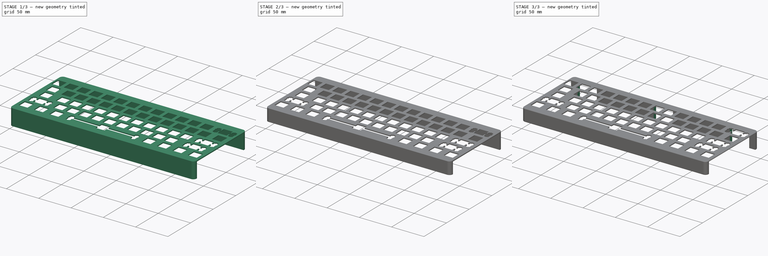
[diagram: build sequence overview — one tinted view per stage of 3, left to right]
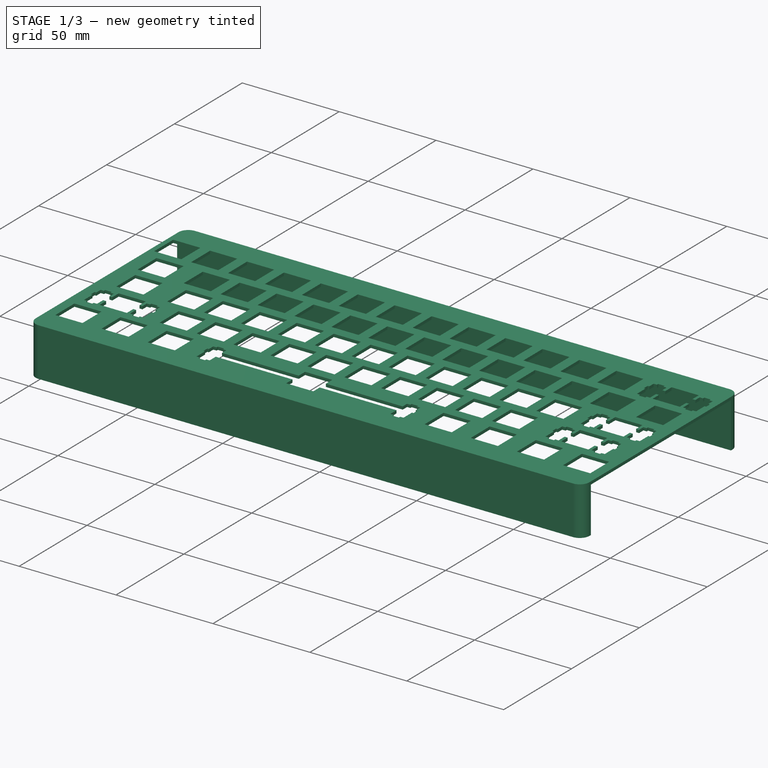
[diagram: stage 1 of 3 — iso view after this stage's code; geometry added in this stage tinted green]
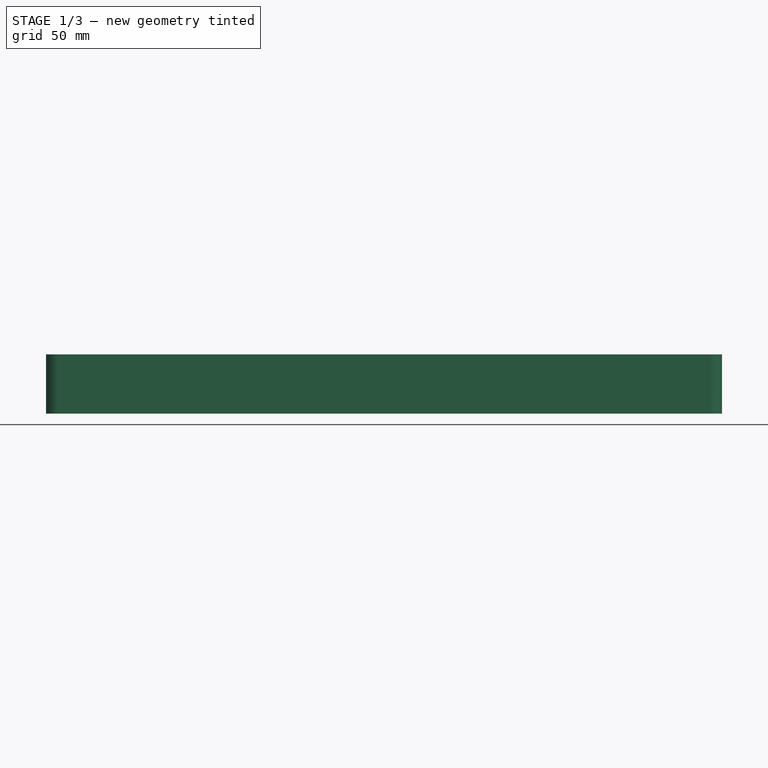
[diagram: stage 1 of 3 — front view after this stage's code; geometry added in this stage tinted green]
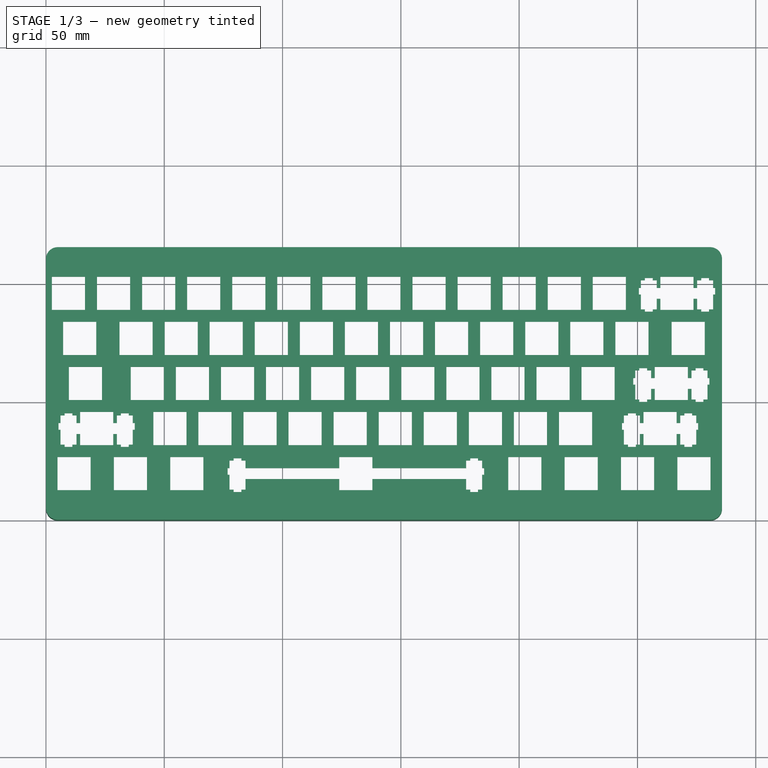
[diagram: stage 1 of 3 — top view after this stage's code; geometry added in this stage tinted green]
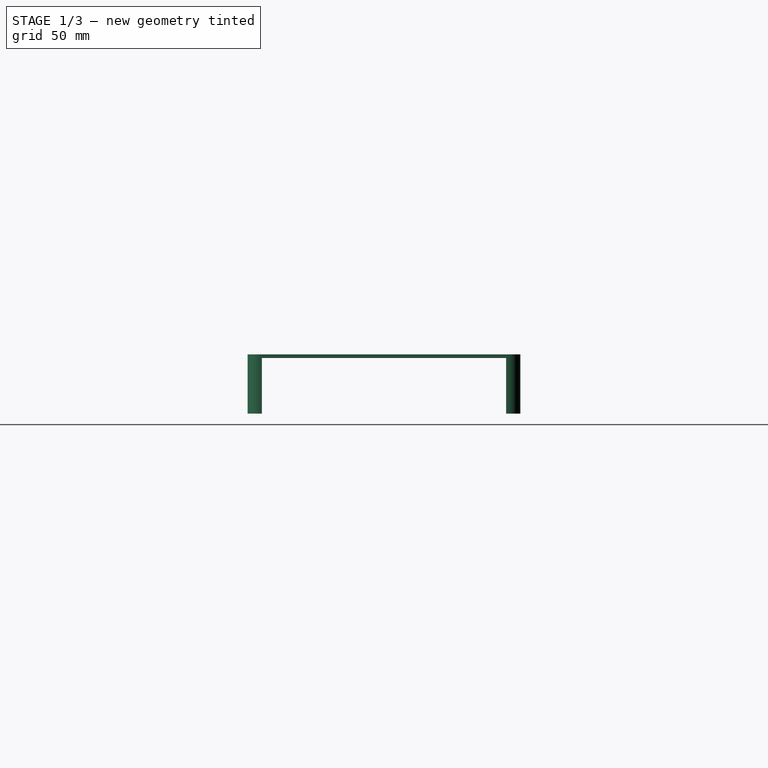
[diagram: stage 1 of 3 — right view after this stage's code; geometry added in this stage tinted green]
FCSTD DOCUMENT  (FreeCAD 0.20R)
Label: Case
License: All rights reserved
LicenseURL: http://en.wikipedia.org/wiki/All_rights_reserved
objects: Sketcher::SketchObject×4, PartDesign::Pocket×3, PartDesign::Pad×1, PartDesign::Fillet×1, PartDesign::Body×1
note: 15 computed .brp shape members not serialized (recipe doc carries the construction recipe); baked Part::Feature solids carry a one-line shape summary decoded from their .brp

FEATURE [Sketcher::SketchObject] Sketch
  FullyConstrained = false
  sketch-geometry (452):
    g0: LineSegment StartX=123.967 StartY=26.5254 StartZ=0 EndX=123.967 EndY=21.8249 EndZ=0
    g1: LineSegment StartX=123.967 StartY=21.8249 StartZ=0 EndX=84.343 EndY=21.8249 EndZ=0
    g2: LineSegment StartX=84.343 StartY=21.8249 StartZ=0 EndX=84.343 EndY=25.0551 EndZ=0
    g3: LineSegment StartX=84.343 StartY=25.0551 StartZ=0 EndX=82.6175 EndY=25.0551 EndZ=0
    g4: LineSegment StartX=82.6175 StartY=25.0551 StartZ=0 EndX=82.6175 EndY=25.977 EndZ=0
    g5: LineSegment StartX=82.6175 StartY=25.977 StartZ=0 EndX=79.3169 EndY=25.977 EndZ=0
    g6: LineSegment StartX=79.3169 StartY=25.977 StartZ=0 EndX=79.3169 EndY=25.0551 EndZ=0
    g7: LineSegment StartX=79.3169 StartY=25.0551 StartZ=0 EndX=77.5919 EndY=25.0551 EndZ=0
    g8: LineSegment StartX=77.5919 StartY=25.0551 StartZ=0 EndX=77.5919 EndY=21.8249 EndZ=0
    g9: LineSegment StartX=77.5919 StartY=21.8249 StartZ=0 EndX=76.7678 EndY=21.8249 EndZ=0
    g10: LineSegment StartX=76.7678 StartY=21.8249 StartZ=0 EndX=76.7678 EndY=19.0261 EndZ=0
    g11: LineSegment StartX=76.7678 StartY=19.0261 StartZ=0 EndX=77.5919 EndY=19.0261 EndZ=0
    g12: LineSegment StartX=77.5919 StartY=19.0261 StartZ=0 EndX=77.5919 EndY=12.7561 EndZ=0
    g13: LineSegment StartX=77.5919 StartY=12.7561 StartZ=0 EndX=79.3169 EndY=12.7561 EndZ=0
    g14: LineSegment StartX=79.3169 StartY=12.7561 StartZ=0 EndX=79.3169 EndY=11.7749 EndZ=0
    g15: LineSegment StartX=79.3169 StartY=11.7749 StartZ=0 EndX=82.6175 EndY=11.7749 EndZ=0
    g16: LineSegment StartX=82.6175 StartY=11.7749 StartZ=0 EndX=82.6175 EndY=12.7561 EndZ=0
    g17: LineSegment StartX=82.6175 StartY=12.7561 StartZ=0 EndX=84.343 EndY=12.7561 EndZ=0
    g18: LineSegment StartX=84.343 StartY=12.7561 StartZ=0 EndX=84.343 EndY=17.2264 EndZ=0
    g19: LineSegment StartX=84.343 StartY=17.2264 StartZ=0 EndX=123.967 EndY=17.2264 EndZ=0
    g20: LineSegment StartX=123.967 StartY=17.2264 StartZ=0 EndX=123.967 EndY=12.5259 EndZ=0
    g21: LineSegment StartX=123.967 StartY=12.5259 StartZ=0 EndX=137.968 EndY=12.5259 EndZ=0
    g22: LineSegment StartX=137.968 StartY=12.5259 StartZ=0 EndX=137.968 EndY=17.2264 EndZ=0
    g23: LineSegment StartX=137.968 StartY=17.2264 StartZ=0 EndX=177.592 EndY=17.2264 EndZ=0
    g24: LineSegment StartX=177.592 StartY=17.2264 StartZ=0 EndX=177.592 EndY=12.7561 EndZ=0
    g25: LineSegment StartX=177.592 StartY=12.7561 StartZ=0 EndX=179.317 EndY=12.7561 EndZ=0
    g26: LineSegment StartX=179.317 StartY=12.7561 StartZ=0 EndX=179.317 EndY=11.7749 EndZ=0
    g27: LineSegment StartX=179.317 StartY=11.7749 StartZ=0 EndX=182.618 EndY=11.7749 EndZ=0
    g28: LineSegment StartX=182.618 StartY=11.7749 StartZ=0 EndX=182.618 EndY=12.7561 EndZ=0
    g29: LineSegment StartX=182.618 StartY=12.7561 StartZ=0 EndX=184.343 EndY=12.7561 EndZ=0
    g30: LineSegment StartX=184.343 StartY=12.7561 StartZ=0 EndX=184.343 EndY=19.0261 EndZ=0
    g31: LineSegment StartX=184.343 StartY=19.0261 StartZ=0 EndX=185.167 EndY=19.0261 EndZ=0
    g32: LineSegment StartX=185.167 StartY=19.0261 StartZ=0 EndX=185.167 EndY=21.8249 EndZ=0
    g33: LineSegment StartX=185.167 StartY=21.8249 StartZ=0 EndX=184.343 EndY=21.8249 EndZ=0
    g34: LineSegment StartX=184.343 StartY=21.8249 StartZ=0 EndX=184.343 EndY=25.0551 EndZ=0
    g35: LineSegment StartX=184.343 StartY=25.0551 StartZ=0 EndX=182.618 EndY=25.0551 EndZ=0
    g36: LineSegment StartX=182.618 StartY=25.0551 StartZ=0 EndX=182.618 EndY=25.977 EndZ=0
    g37: LineSegment StartX=182.618 StartY=25.977 StartZ=0 EndX=179.317 EndY=25.977 EndZ=0
    g38: LineSegment StartX=179.317 StartY=25.977 StartZ=0 EndX=179.317 EndY=25.0551 EndZ=0
    g39: LineSegment StartX=179.317 StartY=25.0551 StartZ=0 EndX=177.592 EndY=25.0551 EndZ=0
    g40: LineSegment StartX=177.592 StartY=25.0551 StartZ=0 EndX=177.592 EndY=21.8249 EndZ=0
    g41: LineSegment StartX=177.592 StartY=21.8249 StartZ=0 EndX=137.968 EndY=21.8249 EndZ=0
    g42: LineSegment StartX=137.968 StartY=21.8249 StartZ=0 EndX=137.968 EndY=26.5254 EndZ=0
    g43: LineSegment StartX=137.968 StartY=26.5254 StartZ=0 EndX=123.967 EndY=26.5254 EndZ=0
    g44: LineSegment StartX=4.90583 StartY=26.5254 StartZ=0 EndX=18.9053 EndY=26.5254 EndZ=0
    g45: LineSegment StartX=18.9053 StartY=26.5254 StartZ=0 EndX=18.9053 EndY=12.5259 EndZ=0
    g46: LineSegment StartX=18.9053 StartY=12.5259 StartZ=0 EndX=4.90583 EndY=12.5259 EndZ=0
    g47: LineSegment StartX=4.90583 StartY=12.5259 StartZ=0 EndX=4.90583 EndY=26.5254 EndZ=0
    g48: LineSegment StartX=28.7169 StartY=26.5254 StartZ=0 EndX=42.7177 EndY=26.5254 EndZ=0
    g49: LineSegment StartX=42.7177 StartY=26.5254 StartZ=0 EndX=42.7177 EndY=12.5259 EndZ=0
    g50: LineSegment StartX=42.7177 StartY=12.5259 StartZ=0 EndX=28.7169 EndY=12.5259 EndZ=0
    g51: LineSegment StartX=28.7169 StartY=12.5259 StartZ=0 EndX=28.7169 EndY=26.5254 EndZ=0
    g52: LineSegment StartX=52.5309 StartY=26.5254 StartZ=0 EndX=66.5302 EndY=26.5254 EndZ=0
    g53: LineSegment StartX=66.5302 StartY=26.5254 StartZ=0 EndX=66.5302 EndY=12.5259 EndZ=0
    g54: LineSegment StartX=66.5302 StartY=12.5259 StartZ=0 EndX=52.5309 EndY=12.5259 EndZ=0
    g55: LineSegment StartX=52.5309 StartY=12.5259 StartZ=0 EndX=52.5309 EndY=26.5254 EndZ=0
    g56: LineSegment StartX=195.406 StartY=26.5254 StartZ=0 EndX=209.405 EndY=26.5254 EndZ=0
    g57: LineSegment StartX=209.405 StartY=26.5254 StartZ=0 EndX=209.405 EndY=12.5259 EndZ=0
    g58: LineSegment StartX=209.405 StartY=12.5259 StartZ=0 EndX=195.406 EndY=12.5259 EndZ=0
    g59: LineSegment StartX=195.406 StartY=12.5259 StartZ=0 EndX=195.406 EndY=26.5254 EndZ=0
    g60: LineSegment StartX=219.217 StartY=26.5254 StartZ=0 EndX=233.218 EndY=26.5254 EndZ=0
    g61: LineSegment StartX=233.218 StartY=26.5254 StartZ=0 EndX=233.218 EndY=12.5259 EndZ=0
    g62: LineSegment StartX=233.218 StartY=12.5259 StartZ=0 EndX=219.217 EndY=12.5259 EndZ=0
    g63: LineSegment StartX=219.217 StartY=12.5259 StartZ=0 EndX=219.217 EndY=26.5254 EndZ=0
    g64: LineSegment StartX=243.031 StartY=26.5254 StartZ=0 EndX=257.03 EndY=26.5254 EndZ=0
    g65: LineSegment StartX=257.03 StartY=26.5254 StartZ=0 EndX=257.03 EndY=12.5259 EndZ=0
    g66: LineSegment StartX=257.03 StartY=12.5259 StartZ=0 EndX=243.031 EndY=12.5259 EndZ=0
    g67: LineSegment StartX=243.031 StartY=12.5259 StartZ=0 EndX=243.031 EndY=26.5254 EndZ=0
    g68: LineSegment StartX=266.842 StartY=26.5254 StartZ=0 EndX=280.843 EndY=26.5254 EndZ=0
    g69: LineSegment StartX=280.843 StartY=26.5254 StartZ=0 EndX=280.843 EndY=12.5259 EndZ=0
    g70: LineSegment StartX=280.843 StartY=12.5259 StartZ=0 EndX=266.842 EndY=12.5259 EndZ=0
    g71: LineSegment StartX=266.842 StartY=12.5259 StartZ=0 EndX=266.842 EndY=26.5254 EndZ=0
    g72: LineSegment StartX=14.4308 StartY=45.5753 StartZ=0 EndX=14.4308 EndY=40.8749 EndZ=0
    g73: LineSegment StartX=14.4308 StartY=40.8749 StartZ=0 EndX=12.9053 EndY=40.8749 EndZ=0
    g74: LineSegment StartX=12.9053 StartY=40.8749 StartZ=0 EndX=12.9053 EndY=44.1051 EndZ=0
    g75: LineSegment StartX=12.9053 StartY=44.1051 StartZ=0 EndX=11.18 EndY=44.1051 EndZ=0
    g76: LineSegment StartX=11.18 StartY=44.1051 StartZ=0 EndX=11.18 EndY=45.0271 EndZ=0
    g77: LineSegment StartX=11.18 StartY=45.0271 StartZ=0 EndX=7.88101 EndY=45.0271 EndZ=0
    g78: LineSegment StartX=7.88101 StartY=45.0271 StartZ=0 EndX=7.88101 EndY=44.1051 EndZ=0
    g79: LineSegment StartX=7.88101 StartY=44.1051 StartZ=0 EndX=6.15572 EndY=44.1051 EndZ=0
    g80: LineSegment StartX=6.15572 StartY=44.1051 StartZ=0 EndX=6.15572 EndY=40.8749 EndZ=0
    g81: LineSegment StartX=6.15572 StartY=40.8749 StartZ=0 EndX=5.33025 EndY=40.8749 EndZ=0
    g82: LineSegment StartX=5.33025 StartY=40.8749 StartZ=0 EndX=5.33025 EndY=38.0761 EndZ=0
    g83: LineSegment StartX=5.33025 StartY=38.0761 StartZ=0 EndX=6.15572 EndY=38.0761 EndZ=0
    g84: LineSegment StartX=6.15572 StartY=38.0761 StartZ=0 EndX=6.15572 EndY=31.8061 EndZ=0
    g85: LineSegment StartX=6.15572 StartY=31.8061 StartZ=0 EndX=7.88101 EndY=31.8061 EndZ=0
    g86: LineSegment StartX=7.88101 StartY=31.8061 StartZ=0 EndX=7.88101 EndY=30.8249 EndZ=0
    g87: LineSegment StartX=7.88101 StartY=30.8249 StartZ=0 EndX=11.18 EndY=30.8249 EndZ=0
    g88: LineSegment StartX=11.18 StartY=30.8249 StartZ=0 EndX=11.18 EndY=31.8061 EndZ=0
    g89: LineSegment StartX=11.18 StartY=31.8061 StartZ=0 EndX=12.9053 EndY=31.8061 EndZ=0
    g90: LineSegment StartX=12.9053 StartY=31.8061 StartZ=0 EndX=12.9053 EndY=36.275 EndZ=0
    g91: LineSegment StartX=12.9053 StartY=36.275 StartZ=0 EndX=14.4308 EndY=36.275 EndZ=0
    g92: LineSegment StartX=14.4308 StartY=36.275 StartZ=0 EndX=14.4308 EndY=31.5759 EndZ=0
    g93: LineSegment StartX=14.4308 StartY=31.5759 StartZ=0 EndX=28.4303 EndY=31.5759 EndZ=0
    g94: LineSegment StartX=28.4303 StartY=31.5759 StartZ=0 EndX=28.4303 EndY=36.275 EndZ=0
    g95: LineSegment StartX=28.4303 StartY=36.275 StartZ=0 EndX=29.9558 EndY=36.275 EndZ=0
    g96: LineSegment StartX=29.9558 StartY=36.275 StartZ=0 EndX=29.9558 EndY=31.8061 EndZ=0
    g97: LineSegment StartX=29.9558 StartY=31.8061 StartZ=0 EndX=31.6797 EndY=31.8061 EndZ=0
    g98: LineSegment StartX=31.6797 StartY=31.8061 StartZ=0 EndX=31.6797 EndY=30.8249 EndZ=0
    g99: LineSegment StartX=31.6797 StartY=30.8249 StartZ=0 EndX=34.9801 EndY=30.8249 EndZ=0
    g100: LineSegment StartX=34.9801 StartY=30.8249 StartZ=0 EndX=34.9801 EndY=31.8061 EndZ=0
    g101: LineSegment StartX=34.9801 StartY=31.8061 StartZ=0 EndX=36.7053 EndY=31.8061 EndZ=0
    g102: LineSegment StartX=36.7053 StartY=31.8061 StartZ=0 EndX=36.7053 EndY=38.0761 EndZ=0
    g103: LineSegment StartX=36.7053 StartY=38.0761 StartZ=0 EndX=37.5308 EndY=38.0761 EndZ=0
    g104: LineSegment StartX=37.5308 StartY=38.0761 StartZ=0 EndX=37.5308 EndY=40.8749 EndZ=0
    g105: LineSegment StartX=37.5308 StartY=40.8749 StartZ=0 EndX=36.7053 EndY=40.8749 EndZ=0
    g106: LineSegment StartX=36.7053 StartY=40.8749 StartZ=0 EndX=36.7053 EndY=44.1051 EndZ=0
    g107: LineSegment StartX=36.7053 StartY=44.1051 StartZ=0 EndX=34.9801 EndY=44.1051 EndZ=0
    g108: LineSegment StartX=34.9801 StartY=44.1051 StartZ=0 EndX=34.9801 EndY=45.0271 EndZ=0
    g109: LineSegment StartX=34.9801 StartY=45.0271 StartZ=0 EndX=31.6797 EndY=45.0271 EndZ=0
    g110: LineSegment StartX=31.6797 StartY=45.0271 StartZ=0 EndX=31.6797 EndY=44.1051 EndZ=0
    g111: LineSegment StartX=31.6797 StartY=44.1051 StartZ=0 EndX=29.9558 EndY=44.1051 EndZ=0
    g112: LineSegment StartX=29.9558 StartY=44.1051 StartZ=0 EndX=29.9558 EndY=40.8749 EndZ=0
    g113: LineSegment StartX=29.9558 StartY=40.8749 StartZ=0 EndX=28.4303 EndY=40.8749 EndZ=0
    g114: LineSegment StartX=28.4303 StartY=40.8749 StartZ=0 EndX=28.4303 EndY=45.5753 EndZ=0
    g115: LineSegment StartX=28.4303 StartY=45.5753 StartZ=0 EndX=14.4308 EndY=45.5753 EndZ=0
    g116: LineSegment StartX=252.555 StartY=45.5753 StartZ=0 EndX=252.555 EndY=40.8749 EndZ=0
    g117: LineSegment StartX=252.555 StartY=40.8749 StartZ=0 EndX=251.031 EndY=40.8749 EndZ=0
    g118: LineSegment StartX=251.031 StartY=40.8749 StartZ=0 EndX=251.031 EndY=44.1051 EndZ=0
    g119: LineSegment StartX=251.031 StartY=44.1051 StartZ=0 EndX=249.305 EndY=44.1051 EndZ=0
    g120: LineSegment StartX=249.305 StartY=44.1051 StartZ=0 EndX=249.305 EndY=45.0271 EndZ=0
    g121: LineSegment StartX=249.305 StartY=45.0271 StartZ=0 EndX=246.006 EndY=45.0271 EndZ=0
    g122: LineSegment StartX=246.006 StartY=45.0271 StartZ=0 EndX=246.006 EndY=44.1051 EndZ=0
    g123: LineSegment StartX=246.006 StartY=44.1051 StartZ=0 EndX=244.281 EndY=44.1051 EndZ=0
    g124: LineSegment StartX=244.281 StartY=44.1051 StartZ=0 EndX=244.281 EndY=40.8749 EndZ=0
    g125: LineSegment StartX=244.281 StartY=40.8749 StartZ=0 EndX=243.455 EndY=40.8749 EndZ=0
    g126: LineSegment StartX=243.455 StartY=40.8749 StartZ=0 EndX=243.455 EndY=38.0761 EndZ=0
    g127: LineSegment StartX=243.455 StartY=38.0761 StartZ=0 EndX=244.281 EndY=38.0761 EndZ=0
    g128: LineSegment StartX=244.281 StartY=38.0761 StartZ=0 EndX=244.281 EndY=31.8061 EndZ=0
    g129: LineSegment StartX=244.281 StartY=31.8061 StartZ=0 EndX=246.006 EndY=31.8061 EndZ=0
    g130: LineSegment StartX=246.006 StartY=31.8061 StartZ=0 EndX=246.006 EndY=30.8249 EndZ=0
    g131: LineSegment StartX=246.006 StartY=30.8249 StartZ=0 EndX=249.305 EndY=30.8249 EndZ=0
    g132: LineSegment StartX=249.305 StartY=30.8249 StartZ=0 EndX=249.305 EndY=31.8061 EndZ=0
    g133: LineSegment StartX=249.305 StartY=31.8061 StartZ=0 EndX=251.031 EndY=31.8061 EndZ=0
    g134: LineSegment StartX=251.031 StartY=31.8061 StartZ=0 EndX=251.031 EndY=36.275 EndZ=0
    g135: LineSegment StartX=251.031 StartY=36.275 StartZ=0 EndX=252.555 EndY=36.275 EndZ=0
    g136: LineSegment StartX=252.555 StartY=36.275 StartZ=0 EndX=252.555 EndY=31.5759 EndZ=0
    g137: LineSegment StartX=252.555 StartY=31.5759 StartZ=0 EndX=266.555 EndY=31.5759 EndZ=0
    g138: LineSegment StartX=266.555 StartY=31.5759 StartZ=0 EndX=266.555 EndY=36.275 EndZ=0
    g139: LineSegment StartX=266.555 StartY=36.275 StartZ=0 EndX=268.081 EndY=36.275 EndZ=0
    g140: LineSegment StartX=268.081 StartY=36.275 StartZ=0 EndX=268.081 EndY=31.8061 EndZ=0
    g141: LineSegment StartX=268.081 StartY=31.8061 StartZ=0 EndX=269.805 EndY=31.8061 EndZ=0
    g142: LineSegment StartX=269.805 StartY=31.8061 StartZ=0 EndX=269.805 EndY=30.8249 EndZ=0
    g143: LineSegment StartX=269.805 StartY=30.8249 StartZ=0 EndX=273.105 EndY=30.8249 EndZ=0
    g144: LineSegment StartX=273.105 StartY=30.8249 StartZ=0 EndX=273.105 EndY=31.8061 EndZ=0
    g145: LineSegment StartX=273.105 StartY=31.8061 StartZ=0 EndX=274.83 EndY=31.8061 EndZ=0
    g146: LineSegment StartX=274.83 StartY=31.8061 StartZ=0 EndX=274.83 EndY=38.0761 EndZ=0
    g147: LineSegment StartX=274.83 StartY=38.0761 StartZ=0 EndX=275.656 EndY=38.0761 EndZ=0
    g148: LineSegment StartX=275.656 StartY=38.0761 StartZ=0 EndX=275.656 EndY=40.8749 EndZ=0
    g149: LineSegment StartX=275.656 StartY=40.8749 StartZ=0 EndX=274.83 EndY=40.8749 EndZ=0
    g150: LineSegment StartX=274.83 StartY=40.8749 StartZ=0 EndX=274.83 EndY=44.1051 EndZ=0
    g151: LineSegment StartX=274.83 StartY=44.1051 StartZ=0 EndX=273.105 EndY=44.1051 EndZ=0
    g152: LineSegment StartX=273.105 StartY=44.1051 StartZ=0 EndX=273.105 EndY=45.0271 EndZ=0
    g153: LineSegment StartX=273.105 StartY=45.0271 StartZ=0 EndX=269.805 EndY=45.0271 EndZ=0
    g154: LineSegment StartX=269.805 StartY=45.0271 StartZ=0 EndX=269.805 EndY=44.1051 EndZ=0
    g155: LineSegment StartX=269.805 StartY=44.1051 StartZ=0 EndX=268.081 EndY=44.1051 EndZ=0
    g156: LineSegment StartX=268.081 StartY=44.1051 StartZ=0 EndX=268.081 EndY=40.8749 EndZ=0
    g157: LineSegment StartX=268.081 StartY=40.8749 StartZ=0 EndX=266.555 EndY=40.8749 EndZ=0
    g158: LineSegment StartX=266.555 StartY=40.8749 StartZ=0 EndX=266.555 EndY=45.5753 EndZ=0
    g159: LineSegment StartX=266.555 StartY=45.5753 StartZ=0 EndX=252.555 EndY=45.5753 EndZ=0
    g160: LineSegment StartX=45.3871 StartY=45.5753 StartZ=0 EndX=59.3864 EndY=45.5753 EndZ=0
    g161: LineSegment StartX=59.3864 StartY=45.5753 StartZ=0 EndX=59.3864 EndY=31.5759 EndZ=0
    g162: LineSegment StartX=59.3864 StartY=31.5759 StartZ=0 EndX=45.3871 EndY=31.5759 EndZ=0
    g163: LineSegment StartX=45.3871 StartY=31.5759 StartZ=0 EndX=45.3871 EndY=45.5753 EndZ=0
    g164: LineSegment StartX=64.4371 StartY=45.5753 StartZ=0 EndX=78.4364 EndY=45.5753 EndZ=0
    g165: LineSegment StartX=78.4364 StartY=45.5753 StartZ=0 EndX=78.4364 EndY=31.5759 EndZ=0
    g166: LineSegment StartX=78.4364 StartY=31.5759 StartZ=0 EndX=64.4371 EndY=31.5759 EndZ=0
    g167: LineSegment StartX=64.4371 StartY=31.5759 StartZ=0 EndX=64.4371 EndY=45.5753 EndZ=0
    g168: LineSegment StartX=83.4871 StartY=45.5753 StartZ=0 EndX=97.4864 EndY=45.5753 EndZ=0
    g169: LineSegment StartX=97.4864 StartY=45.5753 StartZ=0 EndX=97.4864 EndY=31.5759 EndZ=0
    g170: LineSegment StartX=97.4864 StartY=31.5759 StartZ=0 EndX=83.4871 EndY=31.5759 EndZ=0
    g171: LineSegment StartX=83.4871 StartY=31.5759 StartZ=0 EndX=83.4871 EndY=45.5753 EndZ=0
    g172: LineSegment StartX=102.537 StartY=45.5753 StartZ=0 EndX=116.537 EndY=45.5753 EndZ=0
    g173: LineSegment StartX=116.537 StartY=45.5753 StartZ=0 EndX=116.537 EndY=31.5759 EndZ=0
    g174: LineSegment StartX=116.537 StartY=31.5759 StartZ=0 EndX=102.537 EndY=31.5759 EndZ=0
    g175: LineSegment StartX=102.537 StartY=31.5759 StartZ=0 EndX=102.537 EndY=45.5753 EndZ=0
    g176: LineSegment StartX=121.587 StartY=45.5753 StartZ=0 EndX=135.587 EndY=45.5753 EndZ=0
    g177: LineSegment StartX=135.587 StartY=45.5753 StartZ=0 EndX=135.587 EndY=31.5759 EndZ=0
    g178: LineSegment StartX=135.587 StartY=31.5759 StartZ=0 EndX=121.587 EndY=31.5759 EndZ=0
    g179: LineSegment StartX=121.587 StartY=31.5759 StartZ=0 EndX=121.587 EndY=45.5753 EndZ=0
    g180: LineSegment StartX=140.637 StartY=45.5753 StartZ=0 EndX=154.637 EndY=45.5753 EndZ=0
    g181: LineSegment StartX=154.637 StartY=45.5753 StartZ=0 EndX=154.637 EndY=31.5759 EndZ=0
    g182: LineSegment StartX=154.637 StartY=31.5759 StartZ=0 EndX=140.637 EndY=31.5759 EndZ=0
    g183: LineSegment StartX=140.637 StartY=31.5759 StartZ=0 EndX=140.637 EndY=45.5753 EndZ=0
    g184: LineSegment StartX=159.687 StartY=45.5753 StartZ=0 EndX=173.687 EndY=45.5753 EndZ=0
    g185: LineSegment StartX=173.687 StartY=45.5753 StartZ=0 EndX=173.687 EndY=31.5759 EndZ=0
    g186: LineSegment StartX=173.687 StartY=31.5759 StartZ=0 EndX=159.687 EndY=31.5759 EndZ=0
    g187: LineSegment StartX=159.687 StartY=31.5759 StartZ=0 EndX=159.687 EndY=45.5753 EndZ=0
    g188: LineSegment StartX=178.737 StartY=45.5753 StartZ=0 EndX=192.737 EndY=45.5753 EndZ=0
    g189: LineSegment StartX=192.737 StartY=45.5753 StartZ=0 EndX=192.737 EndY=31.5759 EndZ=0
    g190: LineSegment StartX=192.737 StartY=31.5759 StartZ=0 EndX=178.737 EndY=31.5759 EndZ=0
    g191: LineSegment StartX=178.737 StartY=31.5759 StartZ=0 EndX=178.737 EndY=45.5753 EndZ=0
    g192: LineSegment StartX=197.787 StartY=45.5753 StartZ=0 EndX=211.787 EndY=45.5753 EndZ=0
    g193: LineSegment StartX=211.787 StartY=45.5753 StartZ=0 EndX=211.787 EndY=31.5759 EndZ=0
    g194: LineSegment StartX=211.787 StartY=31.5759 StartZ=0 EndX=197.787 EndY=31.5759 EndZ=0
    g195: LineSegment StartX=197.787 StartY=31.5759 StartZ=0 EndX=197.787 EndY=45.5753 EndZ=0
    g196: LineSegment StartX=216.837 StartY=45.5753 StartZ=0 EndX=230.837 EndY=45.5753 EndZ=0
    g197: LineSegment StartX=230.837 StartY=45.5753 StartZ=0 EndX=230.837 EndY=31.5759 EndZ=0
    g198: LineSegment StartX=230.837 StartY=31.5759 StartZ=0 EndX=216.837 EndY=31.5759 EndZ=0
    g199: LineSegment StartX=216.837 StartY=31.5759 StartZ=0 EndX=216.837 EndY=45.5753 EndZ=0
    g200: LineSegment StartX=257.317 StartY=64.6254 StartZ=0 EndX=257.317 EndY=59.9249 EndZ=0
    g201: LineSegment StartX=257.317 StartY=59.9249 StartZ=0 EndX=255.793 EndY=59.9249 EndZ=0
    g202: LineSegment StartX=255.793 StartY=59.9249 StartZ=0 EndX=255.793 EndY=63.155 EndZ=0
    g203: LineSegment StartX=255.793 StartY=63.155 StartZ=0 EndX=254.066 EndY=63.155 EndZ=0
    g204: LineSegment StartX=254.066 StartY=63.155 StartZ=0 EndX=254.066 EndY=64.0757 EndZ=0
    g205: LineSegment StartX=254.066 StartY=64.0757 StartZ=0 EndX=250.767 EndY=64.0757 EndZ=0
    g206: LineSegment StartX=250.767 StartY=64.0757 StartZ=0 EndX=250.767 EndY=63.155 EndZ=0
    g207: LineSegment StartX=250.767 StartY=63.155 StartZ=0 EndX=249.042 EndY=63.155 EndZ=0
    g208: LineSegment StartX=249.042 StartY=63.155 StartZ=0 EndX=249.042 EndY=59.9249 EndZ=0
    g209: LineSegment StartX=249.042 StartY=59.9249 StartZ=0 EndX=248.218 EndY=59.9249 EndZ=0
    g210: LineSegment StartX=248.218 StartY=59.9249 StartZ=0 EndX=248.218 EndY=57.126 EndZ=0
    g211: LineSegment StartX=248.218 StartY=57.126 StartZ=0 EndX=249.042 EndY=57.126 EndZ=0
    g212: LineSegment StartX=249.042 StartY=57.126 StartZ=0 EndX=249.042 EndY=50.8561 EndZ=0
    g213: LineSegment StartX=249.042 StartY=50.8561 StartZ=0 EndX=250.767 EndY=50.8561 EndZ=0
    g214: LineSegment StartX=250.767 StartY=50.8561 StartZ=0 EndX=250.767 EndY=49.875 EndZ=0
    g215: LineSegment StartX=250.767 StartY=49.875 StartZ=0 EndX=254.066 EndY=49.875 EndZ=0
    g216: LineSegment StartX=254.066 StartY=49.875 StartZ=0 EndX=254.066 EndY=50.8561 EndZ=0
    g217: LineSegment StartX=254.066 StartY=50.8561 StartZ=0 EndX=255.793 EndY=50.8561 EndZ=0
    g218: LineSegment StartX=255.793 StartY=50.8561 StartZ=0 EndX=255.793 EndY=55.3251 EndZ=0
    g219: LineSegment StartX=255.793 StartY=55.3251 StartZ=0 EndX=257.317 EndY=55.3251 EndZ=0
    g220: LineSegment StartX=257.317 StartY=55.3251 StartZ=0 EndX=257.317 EndY=50.6261 EndZ=0
    g221: LineSegment StartX=257.317 StartY=50.6261 StartZ=0 EndX=271.318 EndY=50.6261 EndZ=0
    g222: LineSegment StartX=271.318 StartY=50.6261 StartZ=0 EndX=271.318 EndY=55.3251 EndZ=0
    g223: LineSegment StartX=271.318 StartY=55.3251 StartZ=0 EndX=272.842 EndY=55.3251 EndZ=0
    g224: LineSegment StartX=272.842 StartY=55.3251 StartZ=0 EndX=272.842 EndY=50.8561 EndZ=0
    g225: LineSegment StartX=272.842 StartY=50.8561 StartZ=0 EndX=274.567 EndY=50.8561 EndZ=0
    g226: LineSegment StartX=274.567 StartY=50.8561 StartZ=0 EndX=274.567 EndY=49.875 EndZ=0
    g227: LineSegment StartX=274.567 StartY=49.875 StartZ=0 EndX=277.868 EndY=49.875 EndZ=0
    g228: LineSegment StartX=277.868 StartY=49.875 StartZ=0 EndX=277.868 EndY=50.8561 EndZ=0
    g229: LineSegment StartX=277.868 StartY=50.8561 StartZ=0 EndX=279.593 EndY=50.8561 EndZ=0
    g230: LineSegment StartX=279.593 StartY=50.8561 StartZ=0 EndX=279.593 EndY=57.126 EndZ=0
    g231: LineSegment StartX=279.593 StartY=57.126 StartZ=0 EndX=280.417 EndY=57.126 EndZ=0
    g232: LineSegment StartX=280.417 StartY=57.126 StartZ=0 EndX=280.417 EndY=59.9249 EndZ=0
    g233: LineSegment StartX=280.417 StartY=59.9249 StartZ=0 EndX=279.593 EndY=59.9249 EndZ=0
    g234: LineSegment StartX=279.593 StartY=59.9249 StartZ=0 EndX=279.593 EndY=63.155 EndZ=0
    g235: LineSegment StartX=279.593 StartY=63.155 StartZ=0 EndX=277.868 EndY=63.155 EndZ=0
    g236: LineSegment StartX=277.868 StartY=63.155 StartZ=0 EndX=277.868 EndY=64.0757 EndZ=0
    g237: LineSegment StartX=277.868 StartY=64.0757 StartZ=0 EndX=274.567 EndY=64.0757 EndZ=0
    g238: LineSegment StartX=274.567 StartY=64.0757 StartZ=0 EndX=274.567 EndY=63.155 EndZ=0
    g239: LineSegment StartX=274.567 StartY=63.155 StartZ=0 EndX=272.842 EndY=63.155 EndZ=0
    g240: LineSegment StartX=272.842 StartY=63.155 StartZ=0 EndX=272.842 EndY=59.9249 EndZ=0
    g241: LineSegment StartX=272.842 StartY=59.9249 StartZ=0 EndX=271.318 EndY=59.9249 EndZ=0
    g242: LineSegment StartX=271.318 StartY=59.9249 StartZ=0 EndX=271.318 EndY=64.6254 EndZ=0
    g243: LineSegment StartX=271.318 StartY=64.6254 StartZ=0 EndX=257.317 EndY=64.6254 EndZ=0
    g244: LineSegment StartX=9.66695 StartY=64.6254 StartZ=0 EndX=23.6678 EndY=64.6254 EndZ=0
    g245: LineSegment StartX=23.6678 StartY=64.6254 StartZ=0 EndX=23.6678 EndY=50.6261 EndZ=0
    g246: LineSegment StartX=23.6678 StartY=50.6261 StartZ=0 EndX=9.66695 EndY=50.6261 EndZ=0
    g247: LineSegment StartX=9.66695 StartY=50.6261 StartZ=0 EndX=9.66695 EndY=64.6254 EndZ=0
    g248: LineSegment StartX=35.8621 StartY=64.6254 StartZ=0 EndX=49.8614 EndY=64.6254 EndZ=0
    g249: LineSegment StartX=49.8614 StartY=64.6254 StartZ=0 EndX=49.8614 EndY=50.6261 EndZ=0
    g250: LineSegment StartX=49.8614 StartY=50.6261 StartZ=0 EndX=35.8621 EndY=50.6261 EndZ=0
    g251: LineSegment StartX=35.8621 StartY=50.6261 StartZ=0 EndX=35.8621 EndY=64.6254 EndZ=0
    g252: LineSegment StartX=54.9121 StartY=64.6254 StartZ=0 EndX=68.9114 EndY=64.6254 EndZ=0
    g253: LineSegment StartX=68.9114 StartY=64.6254 StartZ=0 EndX=68.9114 EndY=50.6261 EndZ=0
    g254: LineSegment StartX=68.9114 StartY=50.6261 StartZ=0 EndX=54.9121 EndY=50.6261 EndZ=0
    g255: LineSegment StartX=54.9121 StartY=50.6261 StartZ=0 EndX=54.9121 EndY=64.6254 EndZ=0
    g256: LineSegment StartX=73.9621 StartY=64.6254 StartZ=0 EndX=87.9614 EndY=64.6254 EndZ=0
    g257: LineSegment StartX=87.9614 StartY=64.6254 StartZ=0 EndX=87.9614 EndY=50.6261 EndZ=0
    g258: LineSegment StartX=87.9614 StartY=50.6261 StartZ=0 EndX=73.9621 EndY=50.6261 EndZ=0
    g259: LineSegment StartX=73.9621 StartY=50.6261 StartZ=0 EndX=73.9621 EndY=64.6254 EndZ=0
    g260: LineSegment StartX=93.0121 StartY=64.6254 StartZ=0 EndX=107.012 EndY=64.6254 EndZ=0
    g261: LineSegment StartX=107.012 StartY=64.6254 StartZ=0 EndX=107.012 EndY=50.6261 EndZ=0
    g262: LineSegment StartX=107.012 StartY=50.6261 StartZ=0 EndX=93.0121 EndY=50.6261 EndZ=0
    g263: LineSegment StartX=93.0121 StartY=50.6261 StartZ=0 EndX=93.0121 EndY=64.6254 EndZ=0
    g264: LineSegment StartX=112.062 StartY=64.6254 StartZ=0 EndX=126.062 EndY=64.6254 EndZ=0
    g265: LineSegment StartX=126.062 StartY=64.6254 StartZ=0 EndX=126.062 EndY=50.6261 EndZ=0
    g266: LineSegment StartX=126.062 StartY=50.6261 StartZ=0 EndX=112.062 EndY=50.6261 EndZ=0
    g267: LineSegment StartX=112.062 StartY=50.6261 StartZ=0 EndX=112.062 EndY=64.6254 EndZ=0
    g268: LineSegment StartX=131.112 StartY=64.6254 StartZ=0 EndX=145.112 EndY=64.6254 EndZ=0
    g269: LineSegment StartX=145.112 StartY=64.6254 StartZ=0 EndX=145.112 EndY=50.6261 EndZ=0
    g270: LineSegment StartX=145.112 StartY=50.6261 StartZ=0 EndX=131.112 EndY=50.6261 EndZ=0
    g271: LineSegment StartX=131.112 StartY=50.6261 StartZ=0 EndX=131.112 EndY=64.6254 EndZ=0
    g272: LineSegment StartX=150.162 StartY=64.6254 StartZ=0 EndX=164.162 EndY=64.6254 EndZ=0
    g273: LineSegment StartX=164.162 StartY=64.6254 StartZ=0 EndX=164.162 EndY=50.6261 EndZ=0
    g274: LineSegment StartX=164.162 StartY=50.6261 StartZ=0 EndX=150.162 EndY=50.6261 EndZ=0
    g275: LineSegment StartX=150.162 StartY=50.6261 StartZ=0 EndX=150.162 EndY=64.6254 EndZ=0
    g276: LineSegment StartX=169.212 StartY=64.6254 StartZ=0 EndX=183.212 EndY=64.6254 EndZ=0
    g277: LineSegment StartX=183.212 StartY=64.6254 StartZ=0 EndX=183.212 EndY=50.6261 EndZ=0
    g278: LineSegment StartX=183.212 StartY=50.6261 StartZ=0 EndX=169.212 EndY=50.6261 EndZ=0
    g279: LineSegment StartX=169.212 StartY=50.6261 StartZ=0 EndX=169.212 EndY=64.6254 EndZ=0
    g280: LineSegment StartX=188.262 StartY=64.6254 StartZ=0 EndX=202.262 EndY=64.6254 EndZ=0
    g281: LineSegment StartX=202.262 StartY=64.6254 StartZ=0 EndX=202.262 EndY=50.6261 EndZ=0
    g282: LineSegment StartX=202.262 StartY=50.6261 StartZ=0 EndX=188.262 EndY=50.6261 EndZ=0
    g283: LineSegment StartX=188.262 StartY=50.6261 StartZ=0 EndX=188.262 EndY=64.6254 EndZ=0
    g284: LineSegment StartX=207.312 StartY=64.6254 StartZ=0 EndX=221.312 EndY=64.6254 EndZ=0
    g285: LineSegment StartX=221.312 StartY=64.6254 StartZ=0 EndX=221.312 EndY=50.6261 EndZ=0
    g286: LineSegment StartX=221.312 StartY=50.6261 StartZ=0 EndX=207.312 EndY=50.6261 EndZ=0
    g287: LineSegment StartX=207.312 StartY=50.6261 StartZ=0 EndX=207.312 EndY=64.6254 EndZ=0
    g288: LineSegment StartX=226.362 StartY=64.6254 StartZ=0 EndX=240.362 EndY=64.6254 EndZ=0
    g289: LineSegment StartX=240.362 StartY=64.6254 StartZ=0 EndX=240.362 EndY=50.6261 EndZ=0
    g290: LineSegment StartX=240.362 StartY=50.6261 StartZ=0 EndX=226.362 EndY=50.6261 EndZ=0
    g291: LineSegment StartX=226.362 StartY=50.6261 StartZ=0 EndX=226.362 EndY=64.6254 EndZ=0
    g292: LineSegment StartX=7.28708 StartY=83.6754 StartZ=0 EndX=21.2866 EndY=83.6754 EndZ=0
    g293: LineSegment StartX=21.2866 StartY=83.6754 StartZ=0 EndX=21.2866 EndY=69.6761 EndZ=0
    g294: LineSegment StartX=21.2866 StartY=69.6761 StartZ=0 EndX=7.28708 EndY=69.6761 EndZ=0
    g295: LineSegment StartX=7.28708 StartY=69.6761 StartZ=0 EndX=7.28708 EndY=83.6754 EndZ=0
    g296: LineSegment StartX=31.0996 StartY=83.6754 StartZ=0 EndX=45.0989 EndY=83.6754 EndZ=0
    g297: LineSegment StartX=45.0989 StartY=83.6754 StartZ=0 EndX=45.0989 EndY=69.6761 EndZ=0
    g298: LineSegment StartX=45.0989 StartY=69.6761 StartZ=0 EndX=31.0996 EndY=69.6761 EndZ=0
    g299: LineSegment StartX=31.0996 StartY=69.6761 StartZ=0 EndX=31.0996 EndY=83.6754 EndZ=0
    g300: LineSegment StartX=50.1496 StartY=83.6754 StartZ=0 EndX=64.1489 EndY=83.6754 EndZ=0
    g301: LineSegment StartX=64.1489 StartY=83.6754 StartZ=0 EndX=64.1489 EndY=69.6761 EndZ=0
    g302: LineSegment StartX=64.1489 StartY=69.6761 StartZ=0 EndX=50.1496 EndY=69.6761 EndZ=0
    g303: LineSegment StartX=50.1496 StartY=69.6761 StartZ=0 EndX=50.1496 EndY=83.6754 EndZ=0
    g304: LineSegment StartX=69.1996 StartY=83.6754 StartZ=0 EndX=83.1989 EndY=83.6754 EndZ=0
    g305: LineSegment StartX=83.1989 StartY=83.6754 StartZ=0 EndX=83.1989 EndY=69.6761 EndZ=0
    g306: LineSegment StartX=83.1989 StartY=69.6761 StartZ=0 EndX=69.1996 EndY=69.6761 EndZ=0
    g307: LineSegment StartX=69.1996 StartY=69.6761 StartZ=0 EndX=69.1996 EndY=83.6754 EndZ=0
    g308: LineSegment StartX=88.2496 StartY=83.6754 StartZ=0 EndX=102.249 EndY=83.6754 EndZ=0
    g309: LineSegment StartX=102.249 StartY=83.6754 StartZ=0 EndX=102.249 EndY=69.6761 EndZ=0
    g310: LineSegment StartX=102.249 StartY=69.6761 StartZ=0 EndX=88.2496 EndY=69.6761 EndZ=0
    g311: LineSegment StartX=88.2496 StartY=69.6761 StartZ=0 EndX=88.2496 EndY=83.6754 EndZ=0
    g312: LineSegment StartX=107.3 StartY=83.6754 StartZ=0 EndX=121.299 EndY=83.6754 EndZ=0
    g313: LineSegment StartX=121.299 StartY=83.6754 StartZ=0 EndX=121.299 EndY=69.6761 EndZ=0
    g314: LineSegment StartX=121.299 StartY=69.6761 StartZ=0 EndX=107.3 EndY=69.6761 EndZ=0
    g315: LineSegment StartX=107.3 StartY=69.6761 StartZ=0 EndX=107.3 EndY=83.6754 EndZ=0
    g316: LineSegment StartX=126.35 StartY=83.6754 StartZ=0 EndX=140.349 EndY=83.6754 EndZ=0
    g317: LineSegment StartX=140.349 StartY=83.6754 StartZ=0 EndX=140.349 EndY=69.6761 EndZ=0
    g318: LineSegment StartX=140.349 StartY=69.6761 StartZ=0 EndX=126.35 EndY=69.6761 EndZ=0
    g319: LineSegment StartX=126.35 StartY=69.6761 StartZ=0 EndX=126.35 EndY=83.6754 EndZ=0
    g320: LineSegment StartX=145.4 StartY=83.6754 StartZ=0 EndX=159.399 EndY=83.6754 EndZ=0
    g321: LineSegment StartX=159.399 StartY=83.6754 StartZ=0 EndX=159.399 EndY=69.6761 EndZ=0
    g322: LineSegment StartX=159.399 StartY=69.6761 StartZ=0 EndX=145.4 EndY=69.6761 EndZ=0
    g323: LineSegment StartX=145.4 StartY=69.6761 StartZ=0 EndX=145.4 EndY=83.6754 EndZ=0
    g324: LineSegment StartX=164.45 StartY=83.6754 StartZ=0 EndX=178.449 EndY=83.6754 EndZ=0
    g325: LineSegment StartX=178.449 StartY=83.6754 StartZ=0 EndX=178.449 EndY=69.6761 EndZ=0
    g326: LineSegment StartX=178.449 StartY=69.6761 StartZ=0 EndX=164.45 EndY=69.6761 EndZ=0
    g327: LineSegment StartX=164.45 StartY=69.6761 StartZ=0 EndX=164.45 EndY=83.6754 EndZ=0
    g328: LineSegment StartX=183.5 StartY=83.6754 StartZ=0 EndX=197.499 EndY=83.6754 EndZ=0
    g329: LineSegment StartX=197.499 StartY=83.6754 StartZ=0 EndX=197.499 EndY=69.6761 EndZ=0
    g330: LineSegment StartX=197.499 StartY=69.6761 StartZ=0 EndX=183.5 EndY=69.6761 EndZ=0
    g331: LineSegment StartX=183.5 StartY=69.6761 StartZ=0 EndX=183.5 EndY=83.6754 EndZ=0
    g332: LineSegment StartX=202.55 StartY=83.6754 StartZ=0 EndX=216.549 EndY=83.6754 EndZ=0
    g333: LineSegment StartX=216.549 StartY=83.6754 StartZ=0 EndX=216.549 EndY=69.6761 EndZ=0
    g334: LineSegment StartX=216.549 StartY=69.6761 StartZ=0 EndX=202.55 EndY=69.6761 EndZ=0
    g335: LineSegment StartX=202.55 StartY=69.6761 StartZ=0 EndX=202.55 EndY=83.6754 EndZ=0
    g336: LineSegment StartX=221.6 StartY=83.6754 StartZ=0 EndX=235.599 EndY=83.6754 EndZ=0
    g337: LineSegment StartX=235.599 StartY=83.6754 StartZ=0 EndX=235.599 EndY=69.6761 EndZ=0
    g338: LineSegment StartX=235.599 StartY=69.6761 StartZ=0 EndX=221.6 EndY=69.6761 EndZ=0
    g339: LineSegment StartX=221.6 StartY=69.6761 StartZ=0 EndX=221.6 EndY=83.6754 EndZ=0
    g340: LineSegment StartX=240.65 StartY=83.6754 StartZ=0 EndX=254.649 EndY=83.6754 EndZ=0
    g341: LineSegment StartX=254.649 StartY=83.6754 StartZ=0 EndX=254.649 EndY=69.6761 EndZ=0
    g342: LineSegment StartX=254.649 StartY=69.6761 StartZ=0 EndX=240.65 EndY=69.6761 EndZ=0
    g343: LineSegment StartX=240.65 StartY=69.6761 StartZ=0 EndX=240.65 EndY=83.6754 EndZ=0
    g344: LineSegment StartX=264.462 StartY=83.6754 StartZ=0 EndX=278.462 EndY=83.6754 EndZ=0
    g345: LineSegment StartX=278.462 StartY=83.6754 StartZ=0 EndX=278.462 EndY=69.6761 EndZ=0
    g346: LineSegment StartX=278.462 StartY=69.6761 StartZ=0 EndX=264.462 EndY=69.6761 EndZ=0
    g347: LineSegment StartX=264.462 StartY=69.6761 StartZ=0 EndX=264.462 EndY=83.6754 EndZ=0
    g348: LineSegment StartX=259.7 StartY=102.725 StartZ=0 EndX=259.7 EndY=98.0249 EndZ=0
    g349: LineSegment StartX=259.7 StartY=98.0249 StartZ=0 EndX=258.174 EndY=98.0249 EndZ=0
    g350: LineSegment StartX=258.174 StartY=98.0249 StartZ=0 EndX=258.174 EndY=101.255 EndZ=0
    g351: LineSegment StartX=258.174 StartY=101.255 StartZ=0 EndX=256.449 EndY=101.255 EndZ=0
    g352: LineSegment StartX=256.449 StartY=101.255 StartZ=0 EndX=256.449 EndY=102.177 EndZ=0
    g353: LineSegment StartX=256.449 StartY=102.177 StartZ=0 EndX=253.148 EndY=102.177 EndZ=0
    g354: LineSegment StartX=253.148 StartY=102.177 StartZ=0 EndX=253.148 EndY=101.255 EndZ=0
    g355: LineSegment StartX=253.148 StartY=101.255 StartZ=0 EndX=251.425 EndY=101.255 EndZ=0
    g356: LineSegment StartX=251.425 StartY=101.255 StartZ=0 EndX=251.425 EndY=98.0249 EndZ=0
    g357: LineSegment StartX=251.425 StartY=98.0249 StartZ=0 EndX=250.599 EndY=98.0249 EndZ=0
    g358: LineSegment StartX=250.599 StartY=98.0249 StartZ=0 EndX=250.599 EndY=95.226 EndZ=0
    g359: LineSegment StartX=250.599 StartY=95.226 StartZ=0 EndX=251.425 EndY=95.226 EndZ=0
    g360: LineSegment StartX=251.425 StartY=95.226 StartZ=0 EndX=251.425 EndY=88.9561 EndZ=0
    g361: LineSegment StartX=251.425 StartY=88.9561 StartZ=0 EndX=253.148 EndY=88.9561 EndZ=0
    g362: LineSegment StartX=253.148 StartY=88.9561 StartZ=0 EndX=253.148 EndY=87.975 EndZ=0
    g363: LineSegment StartX=253.148 StartY=87.975 StartZ=0 EndX=256.449 EndY=87.975 EndZ=0
    g364: LineSegment StartX=256.449 StartY=87.975 StartZ=0 EndX=256.449 EndY=88.9561 EndZ=0
    g365: LineSegment StartX=256.449 StartY=88.9561 StartZ=0 EndX=258.174 EndY=88.9561 EndZ=0
    g366: LineSegment StartX=258.174 StartY=88.9561 StartZ=0 EndX=258.174 EndY=93.4251 EndZ=0
    g367: LineSegment StartX=258.174 StartY=93.4251 StartZ=0 EndX=259.7 EndY=93.4251 EndZ=0
    g368: LineSegment StartX=259.7 StartY=93.4251 StartZ=0 EndX=259.7 EndY=88.7261 EndZ=0
    g369: LineSegment StartX=259.7 StartY=88.7261 StartZ=0 EndX=273.699 EndY=88.7261 EndZ=0
    g370: LineSegment StartX=273.699 StartY=88.7261 StartZ=0 EndX=273.699 EndY=93.4251 EndZ=0
    g371: LineSegment StartX=273.699 StartY=93.4251 StartZ=0 EndX=275.225 EndY=93.4251 EndZ=0
    g372: LineSegment StartX=275.225 StartY=93.4251 StartZ=0 EndX=275.225 EndY=88.9561 EndZ=0
    g373: LineSegment StartX=275.225 StartY=88.9561 StartZ=0 EndX=276.95 EndY=88.9561 EndZ=0
    g374: LineSegment StartX=276.95 StartY=88.9561 StartZ=0 EndX=276.95 EndY=87.975 EndZ=0
    g375: LineSegment StartX=276.95 StartY=87.975 StartZ=0 EndX=280.249 EndY=87.975 EndZ=0
    g376: LineSegment StartX=280.249 StartY=87.975 StartZ=0 EndX=280.249 EndY=88.9561 EndZ=0
    g377: LineSegment StartX=280.249 StartY=88.9561 StartZ=0 EndX=281.974 EndY=88.9561 EndZ=0
    g378: LineSegment StartX=281.974 StartY=88.9561 StartZ=0 EndX=281.974 EndY=95.226 EndZ=0
    g379: LineSegment StartX=281.974 StartY=95.226 StartZ=0 EndX=282.8 EndY=95.226 EndZ=0
    g380: LineSegment StartX=282.8 StartY=95.226 StartZ=0 EndX=282.8 EndY=98.0249 EndZ=0
    g381: LineSegment StartX=282.8 StartY=98.0249 StartZ=0 EndX=281.974 EndY=98.0249 EndZ=0
    g382: LineSegment StartX=281.974 StartY=98.0249 StartZ=0 EndX=281.974 EndY=101.255 EndZ=0
    g383: LineSegment StartX=281.974 StartY=101.255 StartZ=0 EndX=280.249 EndY=101.255 EndZ=0
    g384: LineSegment StartX=280.249 StartY=101.255 StartZ=0 EndX=280.249 EndY=102.177 EndZ=0
    g385: LineSegment StartX=280.249 StartY=102.177 StartZ=0 EndX=276.95 EndY=102.177 EndZ=0
    g386: LineSegment StartX=276.95 StartY=102.177 StartZ=0 EndX=276.95 EndY=101.255 EndZ=0
    g387: LineSegment StartX=276.95 StartY=101.255 StartZ=0 EndX=275.225 EndY=101.255 EndZ=0
    g388: LineSegment StartX=275.225 StartY=101.255 StartZ=0 EndX=275.225 EndY=98.0249 EndZ=0
    g389: LineSegment StartX=275.225 StartY=98.0249 StartZ=0 EndX=273.699 EndY=98.0249 EndZ=0
    g390: LineSegment StartX=273.699 StartY=98.0249 StartZ=0 EndX=273.699 EndY=102.725 EndZ=0
    g391: LineSegment StartX=273.699 StartY=102.725 StartZ=0 EndX=259.7 EndY=102.725 EndZ=0
    g392: LineSegment StartX=2.52457 StartY=102.725 StartZ=0 EndX=16.5241 EndY=102.725 EndZ=0
    g393: LineSegment StartX=16.5241 StartY=102.725 StartZ=0 EndX=16.5241 EndY=88.7261 EndZ=0
    g394: LineSegment StartX=16.5241 StartY=88.7261 StartZ=0 EndX=2.52457 EndY=88.7261 EndZ=0
    g395: LineSegment StartX=2.52457 StartY=88.7261 StartZ=0 EndX=2.52457 EndY=102.725 EndZ=0
    g396: LineSegment StartX=21.5746 StartY=102.725 StartZ=0 EndX=35.5739 EndY=102.725 EndZ=0
    g397: LineSegment StartX=35.5739 StartY=102.725 StartZ=0 EndX=35.5739 EndY=88.7261 EndZ=0
    g398: LineSegment StartX=35.5739 StartY=88.7261 StartZ=0 EndX=21.5746 EndY=88.7261 EndZ=0
    g399: LineSegment StartX=21.5746 StartY=88.7261 StartZ=0 EndX=21.5746 EndY=102.725 EndZ=0
    ... +52 more geometry lines
  constraints (452):
    c: Coincident(g450,g451)
    c: Coincident(g448,g450)
    c: Coincident(g394,g395)
    c: Coincident(g392,g395)
    c: Coincident(g46,g47)
    c: Coincident(g44,g47)
    c: Coincident(g449,g451)
    c: Coincident(g447,g448)
    c: Coincident(g82,g83)
    c: Coincident(g81,g82)
    c: Coincident(g84,g85)
    c: Coincident(g83,g84)
    c: Coincident(g80,g81)
    c: Coincident(g79,g80)
    c: Coincident(g294,g295)
    c: Coincident(g292,g295)
    c: Coincident(g86,g87)
    c: Coincident(g85,g86)
    c: Coincident(g78,g79)
    c: Coincident(g77,g78)
    c: Coincident(g246,g247)
    c: Coincident(g244,g247)
    c: Coincident(g87,g88)
    c: Coincident(g88,g89)
    c: Coincident(g75,g76)
    c: Coincident(g76,g77)
    c: Coincident(g89,g90)
    c: Coincident(g90,g91)
    c: Coincident(g73,g74)
    c: Coincident(g74,g75)
    c: Coincident(g92,g93)
    c: Coincident(g91,g92)
    c: Coincident(g72,g73)
    c: Coincident(g72,g115)
    c: Coincident(g393,g394)
    c: Coincident(g392,g393)
    c: Coincident(g45,g46)
    c: Coincident(g44,g45)
    c: Coincident(g293,g294)
    c: Coincident(g292,g293)
    c: Coincident(g398,g399)
    c: Coincident(g396,g399)
    c: Coincident(g245,g246)
    c: Coincident(g244,g245)
    c: Coincident(g93,g94)
    c: Coincident(g94,g95)
    c: Coincident(g113,g114)
    c: Coincident(g114,g115)
    c: Coincident(g50,g51)
    c: Coincident(g48,g51)
    c: Coincident(g96,g97)
    c: Coincident(g95,g96)
    c: Coincident(g112,g113)
    c: Coincident(g111,g112)
    c: Coincident(g298,g299)
    c: Coincident(g296,g299)
    c: Coincident(g98,g99)
    c: Coincident(g97,g98)
    c: Coincident(g110,g111)
    c: Coincident(g109,g110)
    c: Coincident(g99,g100)
    c: Coincident(g100,g101)
    c: Coincident(g107,g108)
    c: Coincident(g108,g109)
    c: Coincident(g397,g398)
    c: Coincident(g396,g397)
    c: Coincident(g250,g251)
    c: Coincident(g248,g251)
    c: Coincident(g101,g102)
    c: Coincident(g102,g103)
    c: Coincident(g105,g106)
    c: Coincident(g106,g107)
    c: Coincident(g103,g104)
    c: Coincident(g104,g105)
    c: Coincident(g402,g403)
    c: Coincident(g400,g403)
    c: Coincident(g49,g50)
    c: Coincident(g48,g49)
    c: Coincident(g297,g298)
    c: Coincident(g296,g297)
    c: Coincident(g162,g163)
    c: Coincident(g160,g163)
    c: Coincident(g249,g250)
    c: Coincident(g248,g249)
    c: Coincident(g302,g303)
    c: Coincident(g300,g303)
    c: Coincident(g54,g55)
    c: Coincident(g52,g55)
    c: Coincident(g401,g402)
    c: Coincident(g400,g401)
    c: Coincident(g254,g255)
    c: Coincident(g252,g255)
    c: Coincident(g161,g162)
    c: Coincident(g160,g161)
    c: Coincident(g406,g407)
    c: Coincident(g404,g407)
    c: Coincident(g301,g302)
    c: Coincident(g300,g301)
    c: Coincident(g166,g167)
    c: Coincident(g164,g167)
    c: Coincident(g53,g54)
    c: Coincident(g52,g53)
    c: Coincident(g253,g254)
    c: Coincident(g252,g253)
    c: Coincident(g306,g307)
    c: Coincident(g304,g307)
    c: Coincident(g405,g406)
    c: Coincident(g404,g405)
    c: Coincident(g258,g259)
    c: Coincident(g256,g259)
    c: Coincident(g10,g11)
    c: Coincident(g9,g10)
    c: Coincident(g12,g13)
    c: Coincident(g11,g12)
    c: Coincident(g8,g9)
    c: Coincident(g7,g8)
    c: Coincident(g165,g166)
    c: Coincident(g164,g165)
    c: Coincident(g410,g411)
    c: Coincident(g408,g411)
    c: Coincident(g14,g15)
    c: Coincident(g13,g14)
    c: Coincident(g6,g7)
    c: Coincident(g5,g6)
    c: Coincident(g15,g16)
    c: Coincident(g16,g17)
    c: Coincident(g3,g4)
    c: Coincident(g4,g5)
    c: Coincident(g305,g306)
    c: Coincident(g304,g305)
    c: Coincident(g170,g171)
    c: Coincident(g168,g171)
    c: Coincident(g17,g18)
    c: Coincident(g18,g19)
    c: Coincident(g1,g2)
    c: Coincident(g2,g3)
    c: Coincident(g257,g258)
    c: Coincident(g256,g257)
    c: Coincident(g310,g311)
    c: Coincident(g308,g311)
    c: Coincident(g409,g410)
    c: Coincident(g408,g409)
    c: Coincident(g262,g263)
    c: Coincident(g260,g263)
    c: Coincident(g169,g170)
    c: Coincident(g168,g169)
    c: Coincident(g414,g415)
    c: Coincident(g412,g415)
    c: Coincident(g309,g310)
    c: Coincident(g308,g309)
    c: Coincident(g174,g175)
    c: Coincident(g172,g175)
    c: Coincident(g261,g262)
    c: Coincident(g260,g261)
    c: Coincident(g314,g315)
    c: Coincident(g312,g315)
    c: Coincident(g413,g414)
    c: Coincident(g412,g413)
    c: Coincident(g266,g267)
    c: Coincident(g264,g267)
    c: Coincident(g173,g174)
    c: Coincident(g172,g173)
    c: Coincident(g418,g419)
    c: Coincident(g416,g419)
    c: Coincident(g313,g314)
    c: Coincident(g312,g313)
    c: Coincident(g178,g179)
    c: Coincident(g176,g179)
    c: Coincident(g20,g21)
    c: Coincident(g19,g20)
    c: Coincident(g0,g1)
    c: Coincident(g0,g43)
    c: Coincident(g265,g266)
    c: Coincident(g264,g265)
    c: Coincident(g318,g319)
    c: Coincident(g316,g319)
    c: Coincident(g417,g418)
    c: Coincident(g416,g417)
    c: Coincident(g270,g271)
    c: Coincident(g268,g271)
    c: Coincident(g177,g178)
    c: Coincident(g176,g177)
    c: Coincident(g422,g423)
    c: Coincident(g420,g423)
    c: Coincident(g21,g22)
    c: Coincident(g22,g23)
    c: Coincident(g41,g42)
    c: Coincident(g42,g43)
    c: Coincident(g317,g318)
    c: Coincident(g316,g317)
    c: Coincident(g182,g183)
    c: Coincident(g180,g183)
    c: Coincident(g269,g270)
    c: Coincident(g268,g269)
    c: Coincident(g322,g323)
    c: Coincident(g320,g323)
    c: Coincident(g421,g422)
    c: Coincident(g420,g421)
    c: Coincident(g274,g275)
    c: Coincident(g272,g275)
    c: Coincident(g181,g182)
    c: Coincident(g180,g181)
    c: Coincident(g426,g427)
    c: Coincident(g424,g427)
    c: Coincident(g321,g322)
    c: Coincident(g320,g321)
    c: Coincident(g186,g187)
    c: Coincident(g184,g187)
    c: Coincident(g273,g274)
    c: Coincident(g272,g273)
    c: Coincident(g326,g327)
    c: Coincident(g324,g327)
    c: Coincident(g425,g426)
    c: Coincident(g424,g425)
    c: Coincident(g278,g279)
    c: Coincident(g276,g279)
    c: Coincident(g185,g186)
    c: Coincident(g184,g185)
    c: Coincident(g430,g431)
    c: Coincident(g428,g431)
    c: Coincident(g24,g25)
    c: Coincident(g23,g24)
    c: Coincident(g40,g41)
    c: Coincident(g39,g40)
    c: Coincident(g325,g326)
    c: Coincident(g324,g325)
    c: Coincident(g190,g191)
    c: Coincident(g188,g191)
    c: Coincident(g26,g27)
    c: Coincident(g25,g26)
    c: Coincident(g38,g39)
    c: Coincident(g37,g38)
    c: Coincident(g27,g28)
    c: Coincident(g28,g29)
    c: Coincident(g35,g36)
    c: Coincident(g36,g37)
    c: Coincident(g277,g278)
    c: Coincident(g276,g277)
    c: Coincident(g330,g331)
    c: Coincident(g328,g331)
    c: Coincident(g29,g30)
    c: Coincident(g30,g31)
    c: Coincident(g33,g34)
    c: Coincident(g34,g35)
    c: Coincident(g31,g32)
    c: Coincident(g32,g33)
    c: Coincident(g429,g430)
    c: Coincident(g428,g429)
    c: Coincident(g282,g283)
    c: Coincident(g280,g283)
    c: Coincident(g189,g190)
    c: Coincident(g188,g189)
    c: Coincident(g434,g435)
    c: Coincident(g432,g435)
    c: Coincident(g58,g59)
    c: Coincident(g56,g59)
    c: Coincident(g329,g330)
    c: Coincident(g328,g329)
    c: Coincident(g194,g195)
    c: Coincident(g192,g195)
    c: Coincident(g281,g282)
    c: Coincident(g280,g281)
    c: Coincident(g334,g335)
    c: Coincident(g332,g335)
    c: Coincident(g433,g434)
    c: Coincident(g432,g433)
    c: Coincident(g286,g287)
    c: Coincident(g284,g287)
    c: Coincident(g57,g58)
    c: Coincident(g56,g57)
    c: Coincident(g193,g194)
    c: Coincident(g192,g193)
    c: Coincident(g438,g439)
    c: Coincident(g436,g439)
    c: Coincident(g333,g334)
    c: Coincident(g332,g333)
    c: Coincident(g198,g199)
    c: Coincident(g196,g199)
    c: Coincident(g62,g63)
    c: Coincident(g60,g63)
    c: Coincident(g285,g286)
    c: Coincident(g284,g285)
    c: Coincident(g338,g339)
    c: Coincident(g336,g339)
    c: Coincident(g437,g438)
    c: Coincident(g436,g437)
    c: Coincident(g290,g291)
    c: Coincident(g288,g291)
    c: Coincident(g197,g198)
    c: Coincident(g196,g197)
    c: Coincident(g442,g443)
    c: Coincident(g440,g443)
    c: Coincident(g61,g62)
    c: Coincident(g60,g61)
    c: Coincident(g337,g338)
    c: Coincident(g336,g337)
    c: Coincident(g289,g290)
    c: Coincident(g288,g289)
    c: Coincident(g342,g343)
    c: Coincident(g340,g343)
    c: Coincident(g66,g67)
    c: Coincident(g64,g67)
    c: Coincident(g126,g127)
    c: Coincident(g125,g126)
    c: Coincident(g128,g129)
    c: Coincident(g127,g128)
    c: Coincident(g124,g125)
    c: Coincident(g123,g124)
    c: Coincident(g441,g442)
    c: Coincident(g440,g441)
    c: Coincident(g130,g131)
    c: Coincident(g129,g130)
    c: Coincident(g122,g123)
    c: Coincident(g121,g122)
    c: Coincident(g210,g211)
    c: Coincident(g209,g210)
    c: Coincident(g212,g213)
    c: Coincident(g211,g212)
    c: Coincident(g208,g209)
    c: Coincident(g207,g208)
    c: Coincident(g131,g132)
    c: Coincident(g132,g133)
    c: Coincident(g119,g120)
    c: Coincident(g120,g121)
    c: Coincident(g358,g359)
    c: Coincident(g357,g358)
    c: Coincident(g214,g215)
    c: Coincident(g213,g214)
    c: Coincident(g206,g207)
    c: Coincident(g205,g206)
    c: Coincident(g133,g134)
    c: Coincident(g134,g135)
    c: Coincident(g117,g118)
    c: Coincident(g118,g119)
    c: Coincident(g360,g361)
    c: Coincident(g359,g360)
    c: Coincident(g356,g357)
    c: Coincident(g355,g356)
    c: Coincident(g136,g137)
    c: Coincident(g135,g136)
    c: Coincident(g116,g117)
    c: Coincident(g116,g159)
    c: Coincident(g362,g363)
    c: Coincident(g361,g362)
    c: Coincident(g354,g355)
    c: Coincident(g353,g354)
    c: Coincident(g215,g216)
    c: Coincident(g216,g217)
    c: Coincident(g203,g204)
    c: Coincident(g204,g205)
    c: Coincident(g341,g342)
    c: Coincident(g340,g341)
    c: Coincident(g217,g218)
    c: Coincident(g218,g219)
    c: Coincident(g201,g202)
    c: Coincident(g202,g203)
    c: Coincident(g363,g364)
    c: Coincident(g364,g365)
    c: Coincident(g351,g352)
    c: Coincident(g352,g353)
    c: Coincident(g65,g66)
    c: Coincident(g64,g65)
    c: Coincident(g220,g221)
    c: Coincident(g219,g220)
    c: Coincident(g200,g201)
    c: Coincident(g200,g243)
    c: Coincident(g365,g366)
    c: Coincident(g366,g367)
    c: Coincident(g349,g350)
    c: Coincident(g350,g351)
    c: Coincident(g368,g369)
    c: Coincident(g367,g368)
    c: Coincident(g348,g349)
    c: Coincident(g348,g391)
    c: Coincident(g346,g347)
    c: Coincident(g344,g347)
    c: Coincident(g137,g138)
    c: Coincident(g138,g139)
    c: Coincident(g157,g158)
    c: Coincident(g158,g159)
    c: Coincident(g70,g71)
    c: Coincident(g68,g71)
    c: Coincident(g140,g141)
    c: Coincident(g139,g140)
    c: Coincident(g156,g157)
    c: Coincident(g155,g156)
    c: Coincident(g142,g143)
    c: Coincident(g141,g142)
    c: Coincident(g154,g155)
    c: Coincident(g153,g154)
    c: Coincident(g221,g222)
    c: Coincident(g222,g223)
    c: Coincident(g241,g242)
    c: Coincident(g242,g243)
    c: Coincident(g224,g225)
    c: Coincident(g223,g224)
    c: Coincident(g240,g241)
    c: Coincident(g239,g240)
    c: Coincident(g143,g144)
    c: Coincident(g144,g145)
    c: Coincident(g151,g152)
    c: Coincident(g152,g153)
    c: Coincident(g369,g370)
    c: Coincident(g370,g371)
    c: Coincident(g389,g390)
    c: Coincident(g390,g391)
    c: Coincident(g226,g227)
    c: Coincident(g225,g226)
    c: Coincident(g238,g239)
    c: Coincident(g237,g238)
    c: Coincident(g145,g146)
    c: Coincident(g146,g147)
    c: Coincident(g149,g150)
    c: Coincident(g150,g151)
    c: Coincident(g372,g373)
    c: Coincident(g371,g372)
    c: Coincident(g388,g389)
    c: Coincident(g387,g388)
    c: Coincident(g147,g148)
    c: Coincident(g148,g149)
    c: Coincident(g374,g375)
    c: Coincident(g373,g374)
    c: Coincident(g386,g387)
    c: Coincident(g385,g386)
    c: Coincident(g227,g228)
    c: Coincident(g228,g229)
    c: Coincident(g235,g236)
    c: Coincident(g236,g237)
    c: Coincident(g345,g346)
    c: Coincident(g344,g345)
    c: Coincident(g229,g230)
    c: Coincident(g230,g231)
    c: Coincident(g233,g234)
    c: Coincident(g234,g235)
    c: Coincident(g375,g376)
    c: Coincident(g376,g377)
    c: Coincident(g383,g384)
    c: Coincident(g384,g385)
    c: Coincident(g231,g232)
    c: Coincident(g232,g233)
    c: Coincident(g446,g449)
    c: Coincident(g444,g447)
    c: Coincident(g69,g70)
    c: Coincident(g68,g69)
    c: Coincident(g377,g378)
    c: Coincident(g378,g379)
    c: Coincident(g381,g382)
    c: Coincident(g382,g383)
    c: Coincident(g379,g380)
    c: Coincident(g380,g381)
    c: Coincident(g445,g446)
    c: Coincident(g444,g445)
FEATURE [PartDesign::Pad] Pad
  Direction = (0,0,1)
  Length = 25
  Length2 = 10
  Profile = -> Sketch
  ReferenceAxis = -> Sketch [N_Axis]
  Type = 0
FEATURE [Sketcher::SketchObject] Sketch001
  ExternalGeometry = -> [Pad]
  FullyConstrained = true
  MapMode = 5
  Placement = pos=(0,0,0) rot=(1,0,0;3.14159rad)
  Support = -> [Pad]
  sketch-geometry (4):
    g0: LineSegment StartX=285.75 StartY=-6 StartZ=0 EndX=0 EndY=-6 EndZ=0
    g1: LineSegment StartX=0 StartY=-6 StartZ=0 EndX=0 EndY=-109.25 EndZ=0
    g2: LineSegment StartX=0 StartY=-109.25 StartZ=0 EndX=285.75 EndY=-109.25 EndZ=0
    g3: LineSegment StartX=285.75 StartY=-109.25 StartZ=0 EndX=285.75 EndY=-6 EndZ=0
  constraints (12):
    c: Coincident(g0,g1)
    c: Coincident(g1,g2)
    c: Coincident(g2,g3)
    c: Coincident(g3,g0)
    c: Horizontal(g0)
    c: Horizontal(g2)
    c: Vertical(g1)
    c: Vertical(g3)
    c: PointOnObject(g0,g-5)
    c: PointOnObject(g1,g-6)
    c: DistanceY(g0,g-3) = 6
    c: DistanceY(g-4,g1) = 6
FEATURE [PartDesign::Pocket] Pocket
  BaseFeature = -> Pad
  Direction = (0,0,1)
  Length = 0
  Length2 = 5
  Offset = -1.5
  Profile = -> Sketch001
  ReferenceAxis = -> Sketch001 [N_Axis]
  Type = 3
  UpToFace = -> Pad [Face454]
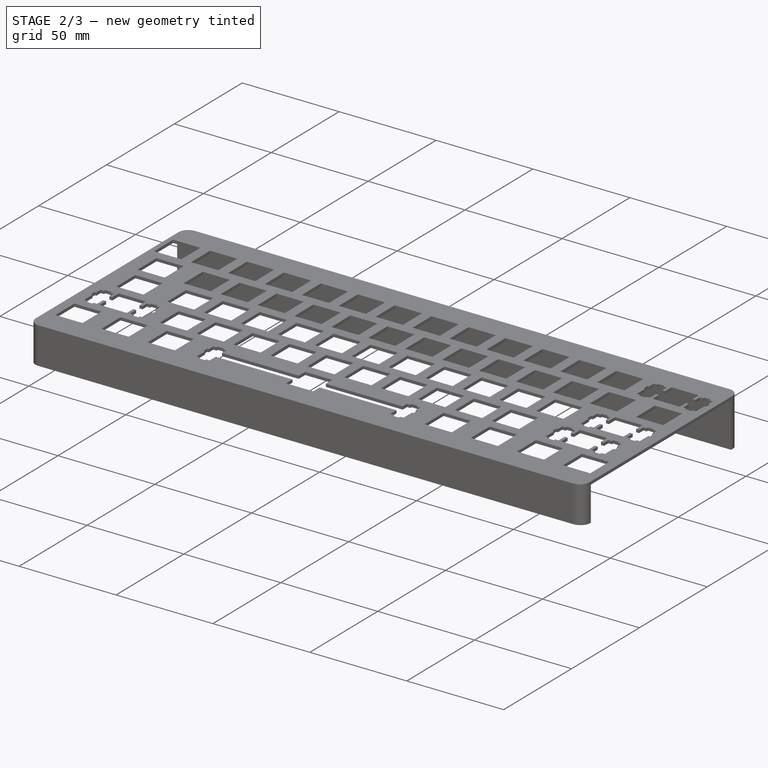
[diagram: stage 2 of 3 — iso view after this stage's code; geometry added in this stage tinted green]
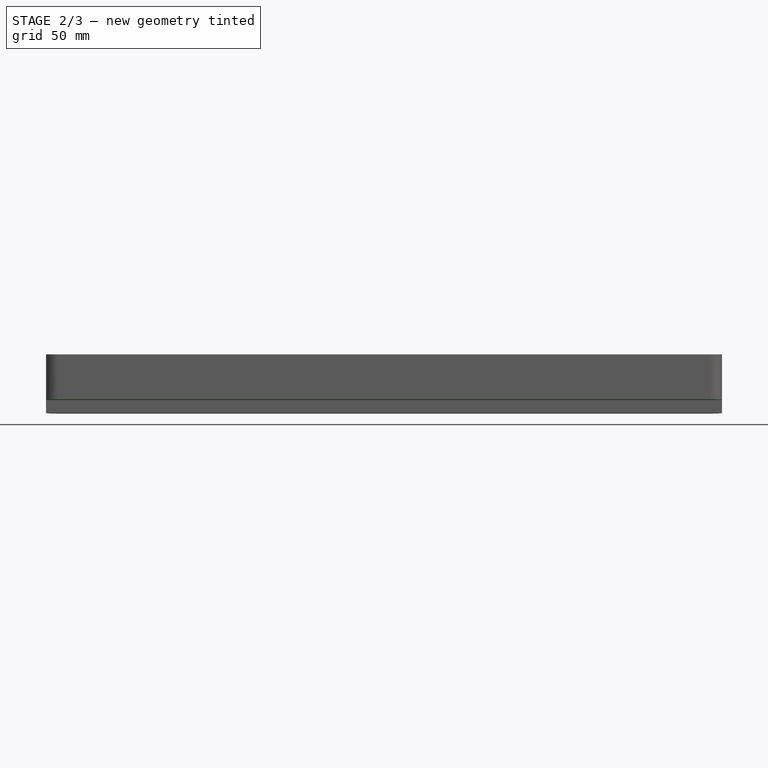
[diagram: stage 2 of 3 — front view after this stage's code; geometry added in this stage tinted green]
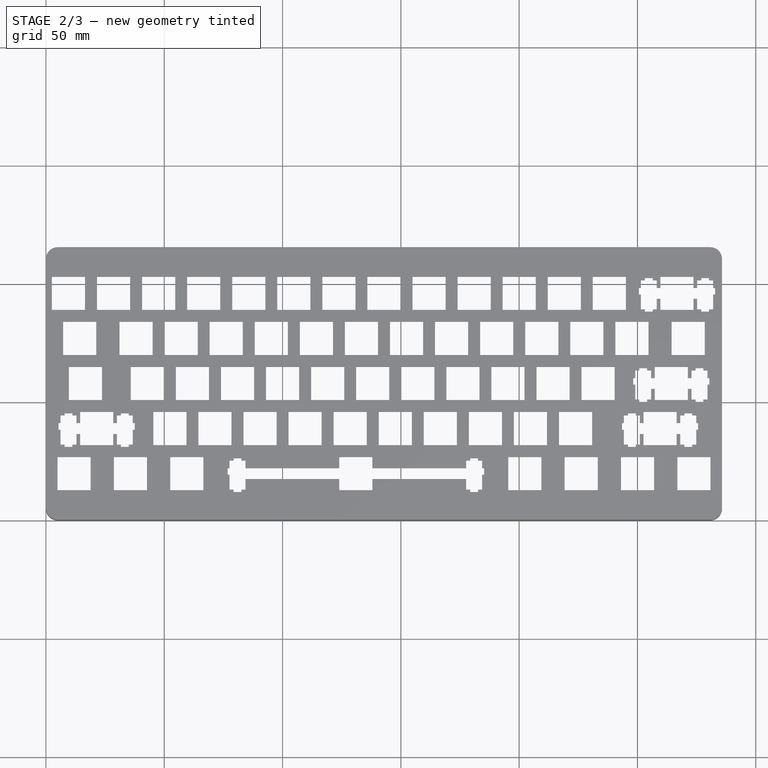
[diagram: stage 2 of 3 — top view after this stage's code; geometry added in this stage tinted green]
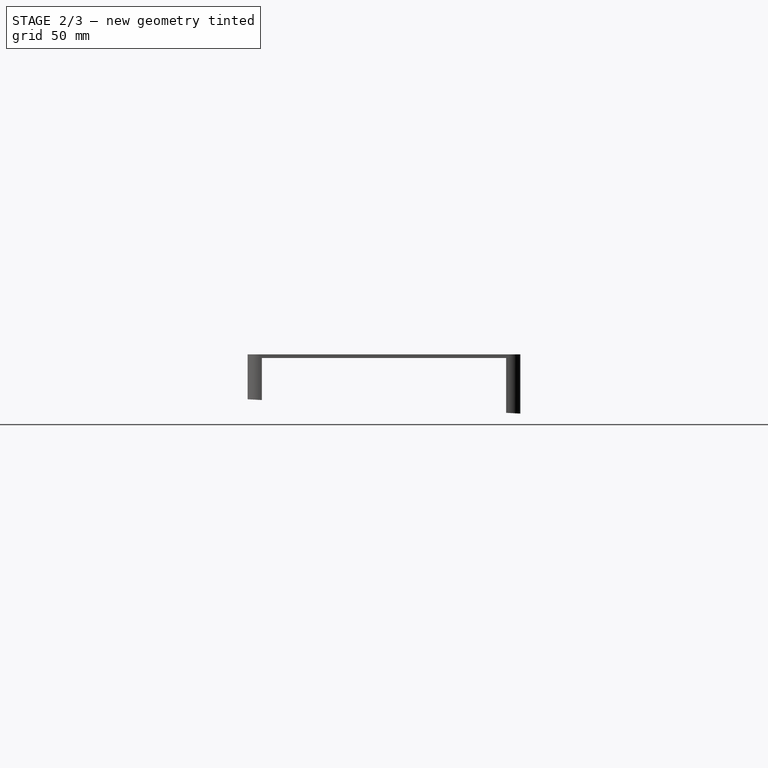
[diagram: stage 2 of 3 — right view after this stage's code; geometry added in this stage tinted green]
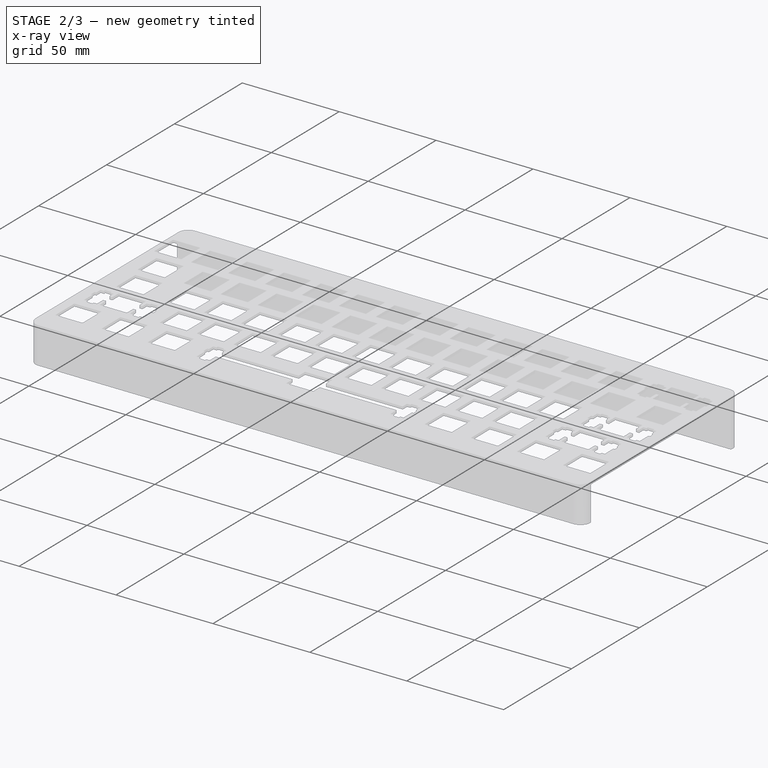
[diagram: stage 2 of 3 — x-ray composite at the iso view; earlier geometry ghosted, this stage's added geometry solid]
FEATURE [Sketcher::SketchObject] Sketch002
  ExternalGeometry = -> [Pocket]
  FullyConstrained = true
  MapMode = 5
  Placement = pos=(285.75,0,0) rot=(0.57735,0.57735,0.57735;2.0944rad)
  Support = -> [Pocket]
  sketch-geometry (3):
    g0: LineSegment StartX=0 StartY=0 StartZ=0 EndX=115.25 EndY=0 EndZ=0
    g1: LineSegment StartX=115.25 StartY=0 StartZ=0 EndX=0 EndY=6.03999 EndZ=0
    g2: LineSegment StartX=0 StartY=6.03999 StartZ=0 EndX=0 EndY=0 EndZ=0
  constraints (7):
    c: Coincident(g-4,g0)
    c: Coincident(g0,g-3)
    c: Coincident(g0,g1)
    c: PointOnObject(g1,g-4)
    c: Coincident(g1,g2)
    c: Coincident(g2,g0)
    c: Angle(g1,g0) = 0.0523599
FEATURE [PartDesign::Pocket] Pocket001
  BaseFeature = -> Pocket
  Direction = (-1,0,0)
  Length = 5
  Length2 = 5
  Profile = -> Sketch002
  ReferenceAxis = -> Sketch002 [N_Axis]
  Type = 1
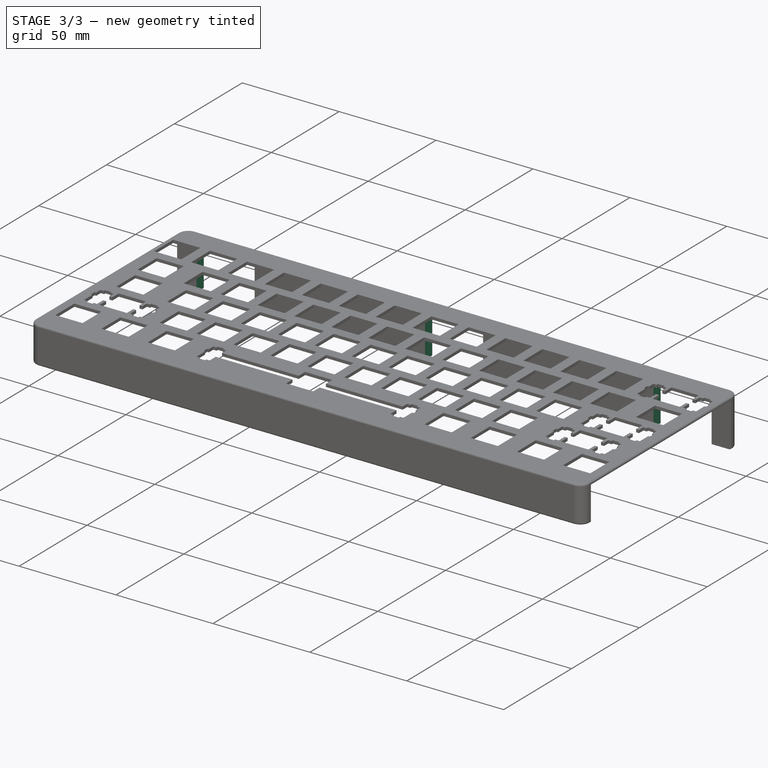
[diagram: stage 3 of 3 — iso view after this stage's code; geometry added in this stage tinted green]
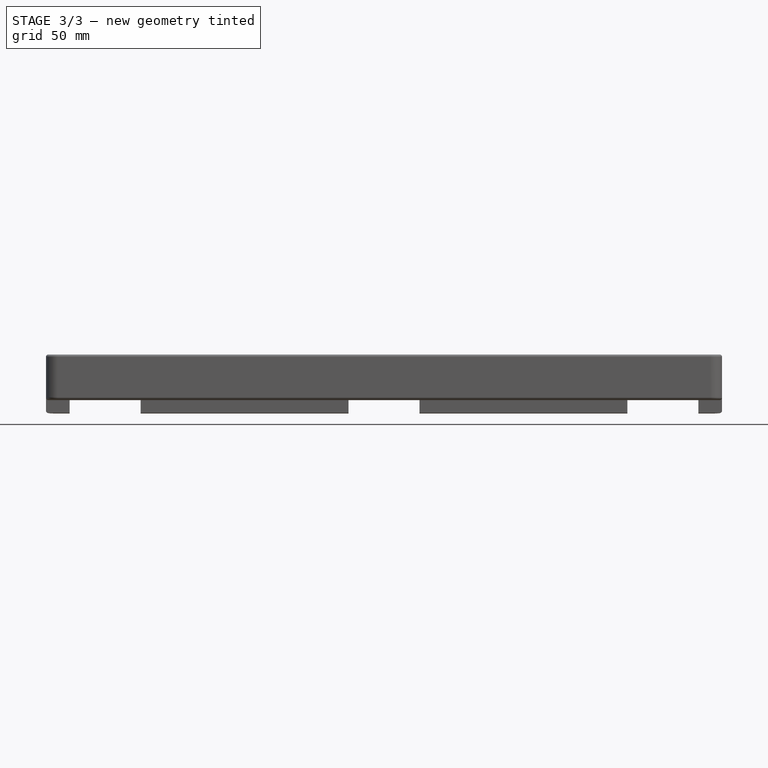
[diagram: stage 3 of 3 — front view after this stage's code; geometry added in this stage tinted green]
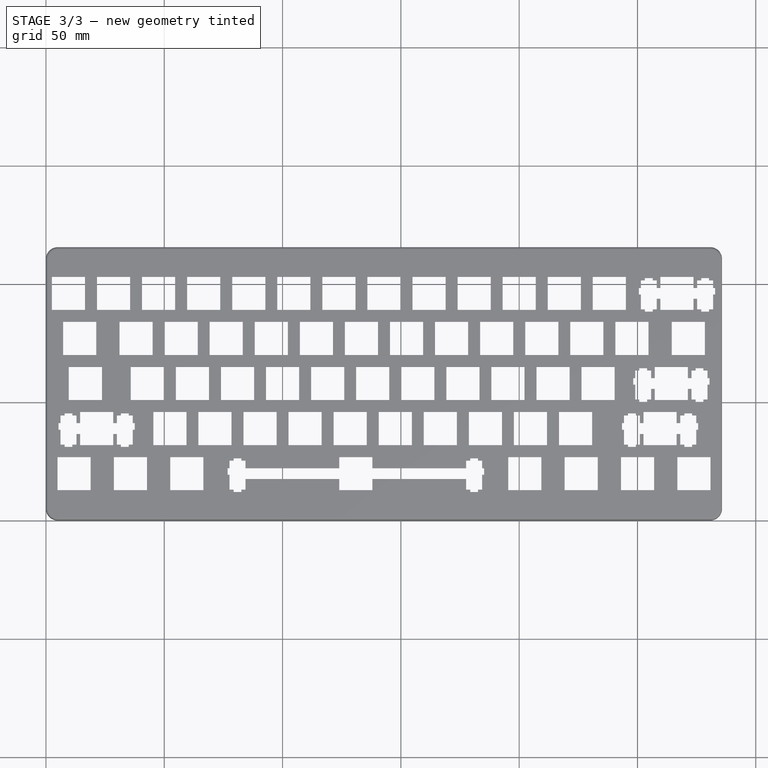
[diagram: stage 3 of 3 — top view after this stage's code; geometry added in this stage tinted green]
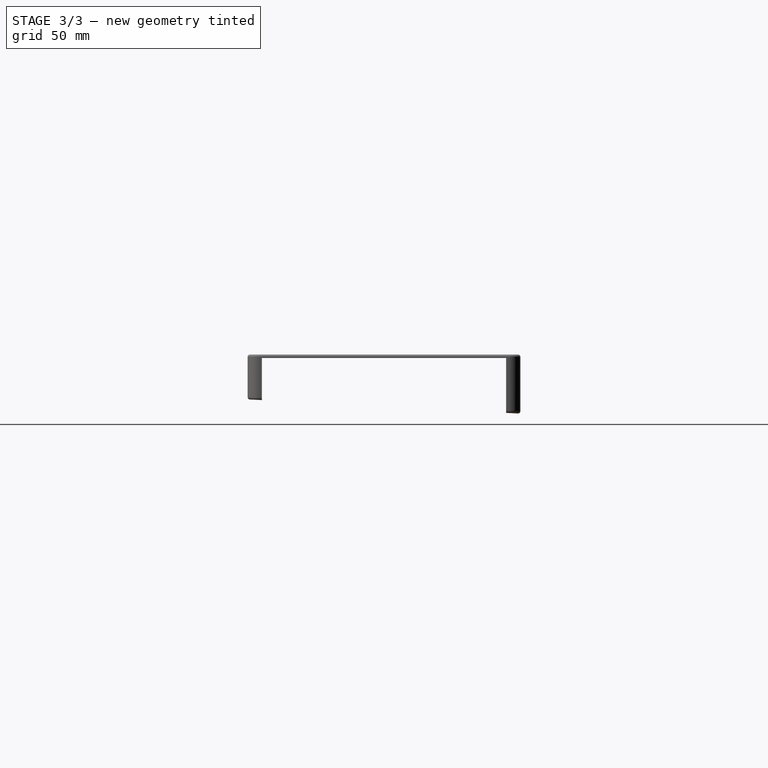
[diagram: stage 3 of 3 — right view after this stage's code; geometry added in this stage tinted green]
FEATURE [Sketcher::SketchObject] Sketch003
  ExternalGeometry = -> [Pocket001]
  FullyConstrained = true
  MapMode = 5
  Placement = pos=(0,0.315675,6.02344) rot=(1,0,0;3.08923rad)
  Support = -> [Pocket001]
  sketch-geometry (14):
    g0: LineSegment StartX=275.75 StartY=-107.87 StartZ=0 EndX=245.75 EndY=-107.87 EndZ=0
    g1: LineSegment StartX=245.75 StartY=-107.87 StartZ=0 EndX=245.75 EndY=-115.092 EndZ=0
    g2: LineSegment StartX=245.75 StartY=-115.092 StartZ=0 EndX=275.75 EndY=-115.092 EndZ=0
    g3: LineSegment StartX=275.75 StartY=-115.092 StartZ=0 EndX=275.75 EndY=-107.87 EndZ=0
    g4: LineSegment StartX=10 StartY=-115.092 StartZ=0 EndX=40 EndY=-115.092 EndZ=0
    g5: LineSegment StartX=40 StartY=-115.092 StartZ=0 EndX=40 EndY=-107.87 EndZ=0
    g6: LineSegment StartX=40 StartY=-107.87 StartZ=0 EndX=10 EndY=-107.87 EndZ=0
    g7: LineSegment StartX=10 StartY=-107.87 StartZ=0 EndX=10 EndY=-115.092 EndZ=0
    g8: LineSegment StartX=127.875 StartY=-107.87 StartZ=0 EndX=157.875 EndY=-107.87 EndZ=0
    g9: LineSegment StartX=157.875 StartY=-107.87 StartZ=0 EndX=157.875 EndY=-115.092 EndZ=0
    g10: LineSegment StartX=157.875 StartY=-115.092 StartZ=0 EndX=127.875 EndY=-115.092 EndZ=0
    g11: LineSegment StartX=127.875 StartY=-115.092 StartZ=0 EndX=127.875 EndY=-107.87 EndZ=0
    g12: LineSegment StartX=127.875 StartY=-107.87 StartZ=0 EndX=0 EndY=-109.084 EndZ=0
    g13: LineSegment StartX=157.875 StartY=-107.87 StartZ=0 EndX=285.75 EndY=-109.084 EndZ=0
  constraints (40):
    c: Coincident(g0,g1)
    c: Coincident(g1,g2)
    c: Coincident(g2,g3)
    c: Coincident(g3,g0)
    c: Horizontal(g0)
    c: Horizontal(g2)
    c: Vertical(g1)
    c: Vertical(g3)
    c: PointOnObject(g1,g-4)
    c: DistanceX(g2,g-4) = 5
    c: DistanceX(g1,g2) = 30
    c: Coincident(g4,g5)
    c: Coincident(g5,g6)
    c: Coincident(g6,g7)
    c: Coincident(g7,g4)
    c: Horizontal(g4)
    c: Horizontal(g6)
    c: Vertical(g5)
    c: Vertical(g7)
    c: PointOnObject(g4,g-4)
    c: DistanceX(g-4,g4) = 5
    c: DistanceX(g6,g6) = 30
    c: Coincident(g8,g9)
    c: Coincident(g9,g10)
    c: Coincident(g10,g11)
    c: Coincident(g11,g8)
    c: Horizontal(g8)
    c: Horizontal(g10)
    c: Vertical(g9)
    c: Vertical(g11)
    c: PointOnObject(g9,g-4)
    c: Coincident(g12,g8)
    c: Coincident(g12,g-3)
    c: Coincident(g13,g8)
    c: Coincident(g13,g-3)
    c: DistanceX(g8,g8) = 30
    c: Equal(g12,g13)
    c: PointOnObject(g5,g-5)
    c: PointOnObject(g8,g-5)
    c: PointOnObject(g0,g-5)
FEATURE [PartDesign::Pocket] Pocket002
  BaseFeature = -> Pocket001
  Direction = (0,0.052336,0.99863)
  Length = 0
  Length2 = 5
  Profile = -> Sketch003
  ReferenceAxis = -> Sketch003 [N_Axis]
  Type = 3
  UpToFace = -> Pocket001 [Face456]
FEATURE [PartDesign::Fillet] Fillet
  Base = -> Pocket002 [Edge26,Edge512,Edge17,Edge13,Edge8,Edge9,Edge14,Edge16,Edge18,Edge12,Edge20,Edge10]
  BaseFeature = -> Pocket002
  Radius = 1
  SupportTransform = false
  UseAllEdges = false
FEATURE [PartDesign::Body] Body
  Group = -> [Sketch,Pad,Sketch001,Pocket,Sketch002,Pocket001,Sketch003,Pocket002,Fillet]
  Origin = -> Origin
  Tip = -> Fillet
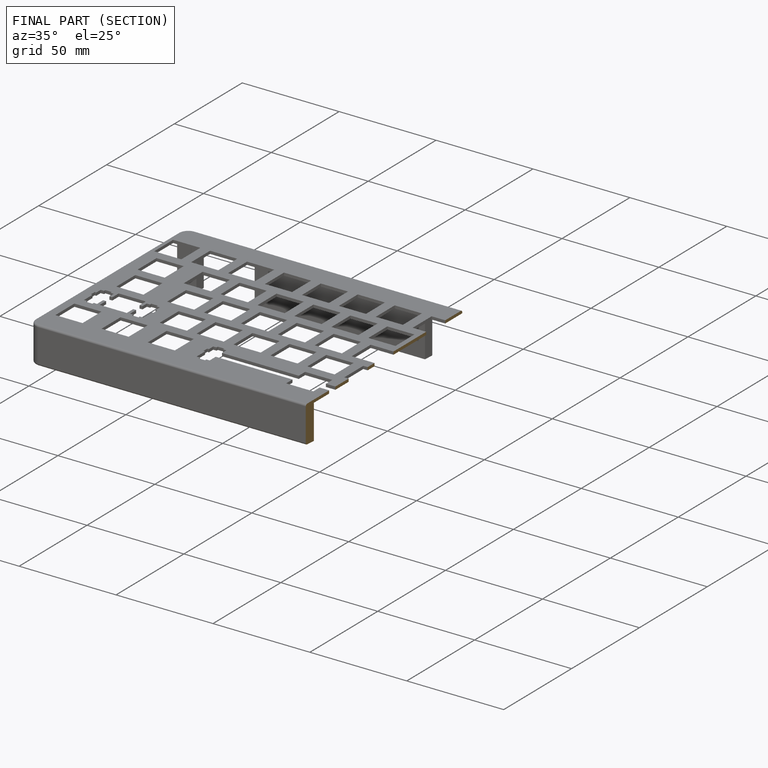
[diagram: finished part — half-section view (interior)]
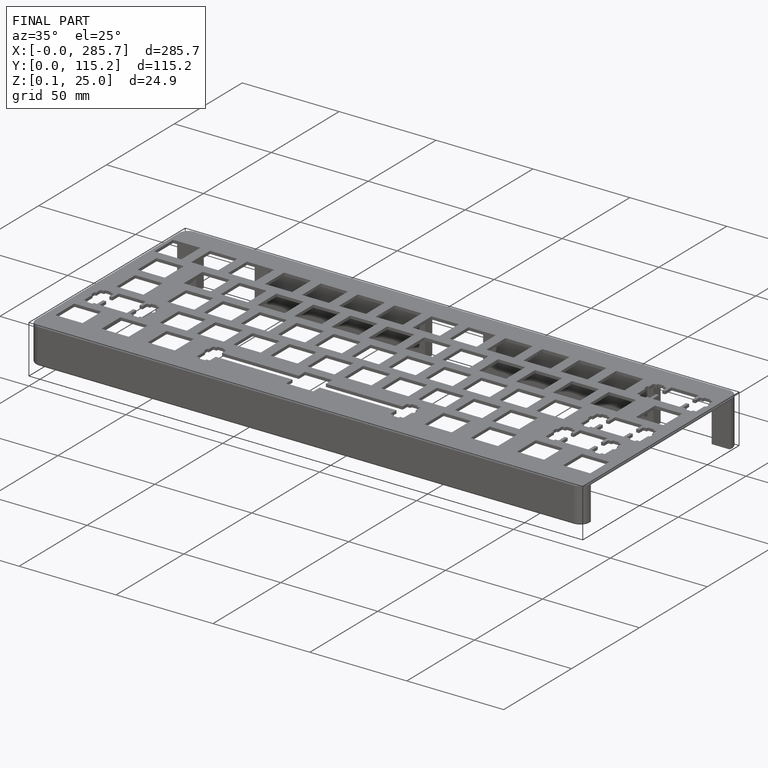
[diagram: finished part — iso view with bounding-box wireframe]
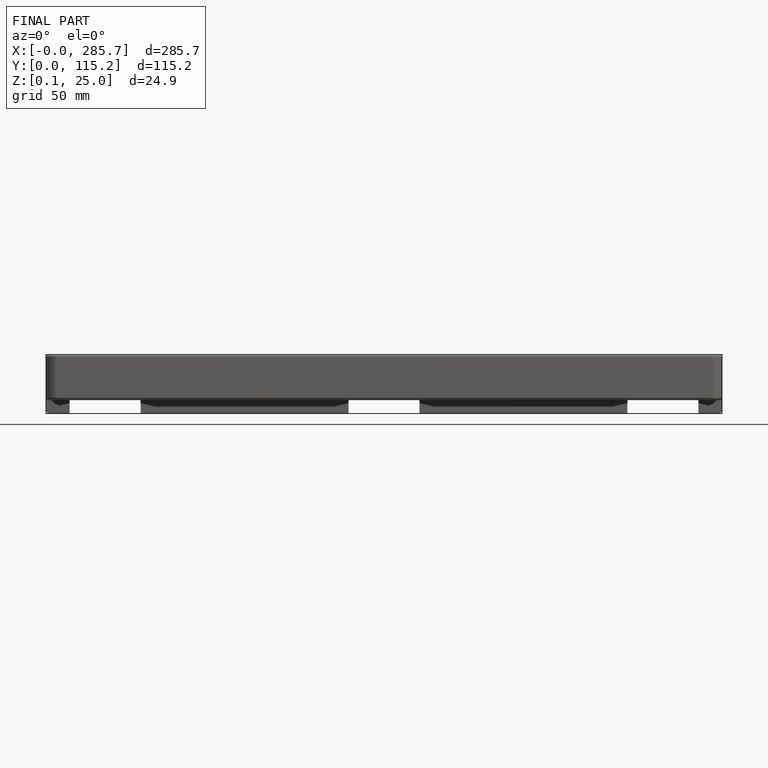
[diagram: finished part — front view with bounding-box wireframe]
